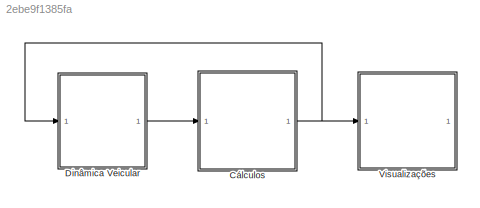
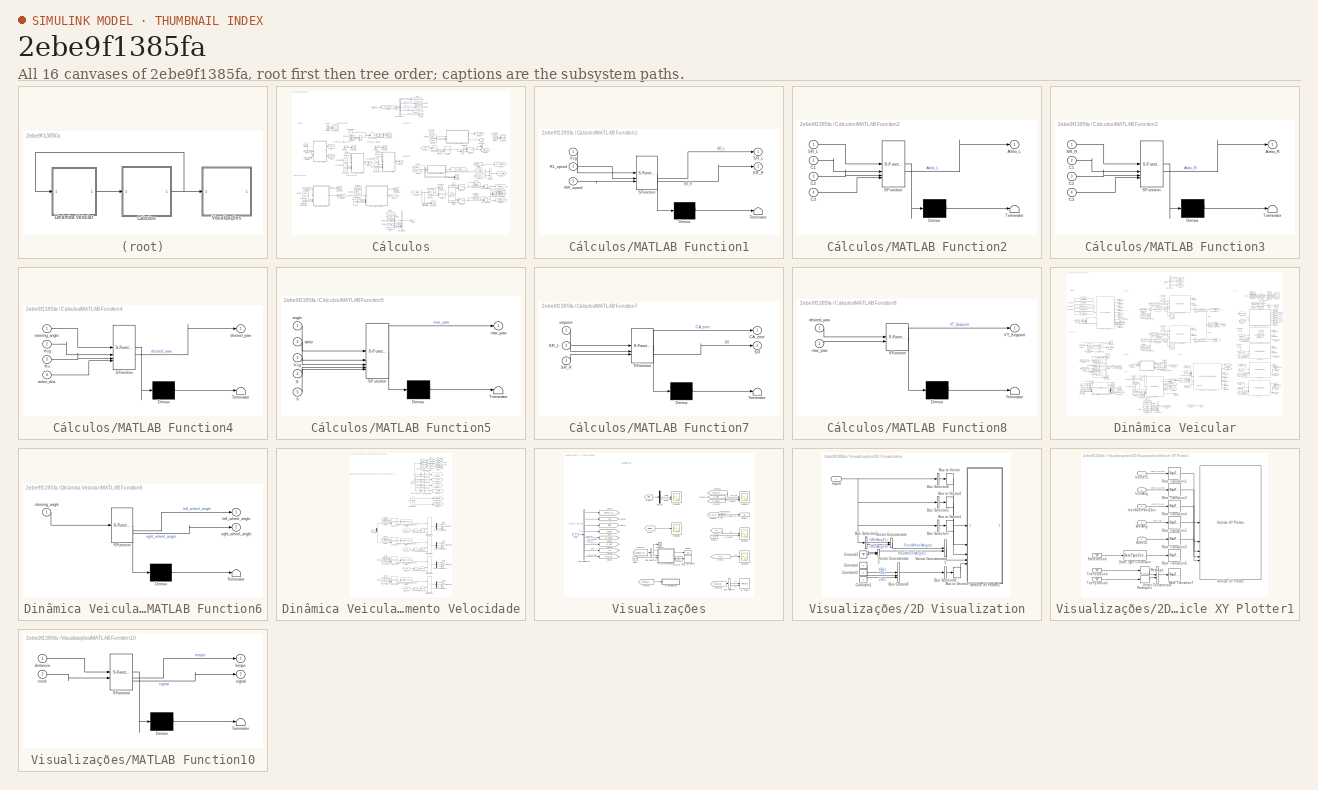
[diagram: thumbnail index - all 16 canvases of the model, root first then tree order]
MODEL slx_2ebe9f1385fa
KIND model
CONFIG AbsTol = auto
CONFIG EnableMultiTasking = off
CONFIG FixedStep = auto
CONFIG MaxStep = auto
CONFIG MinStep = auto
CONFIG RelTol = 1e-3
CONFIG SampleTimeConstraint = Unconstrained
CONFIG SolverName = VariableStepAuto
CONFIG StartTime = 0.0
CONFIG StopTime = 50
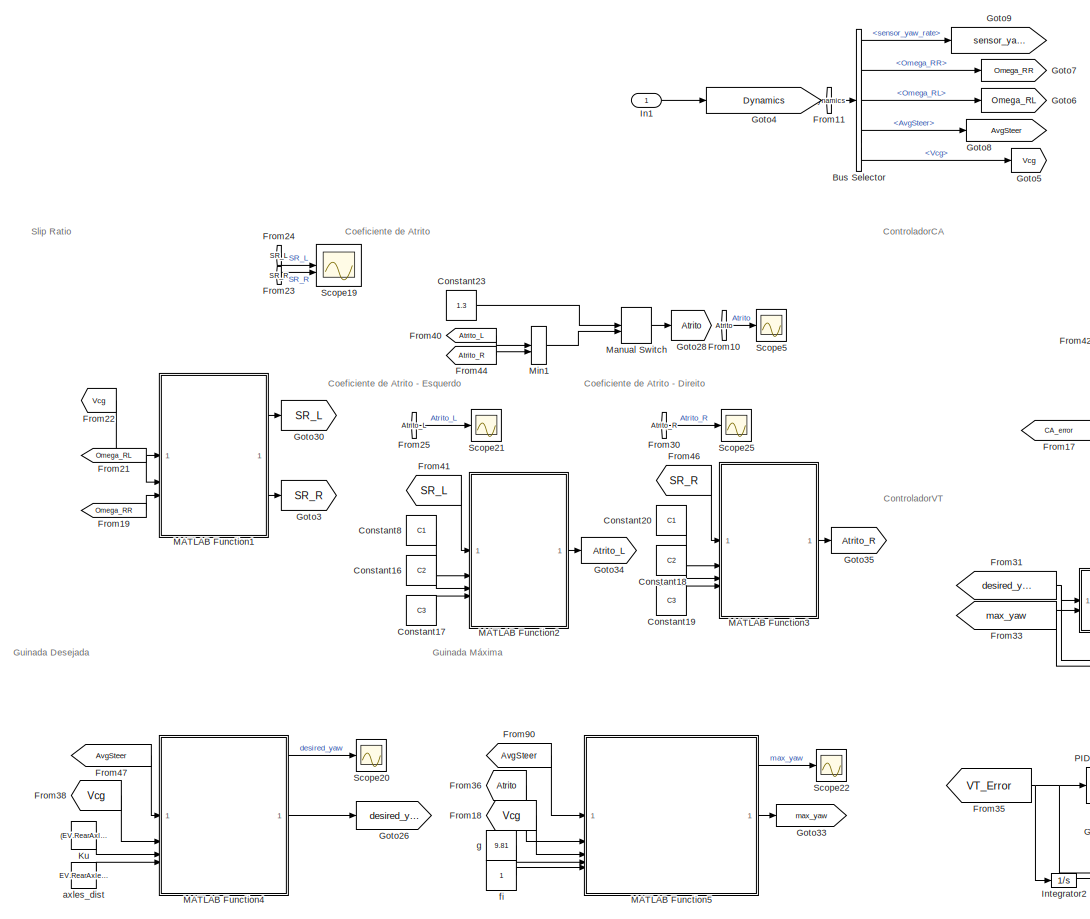
[diagram: Cálculos - part 1/2, left side, full height]
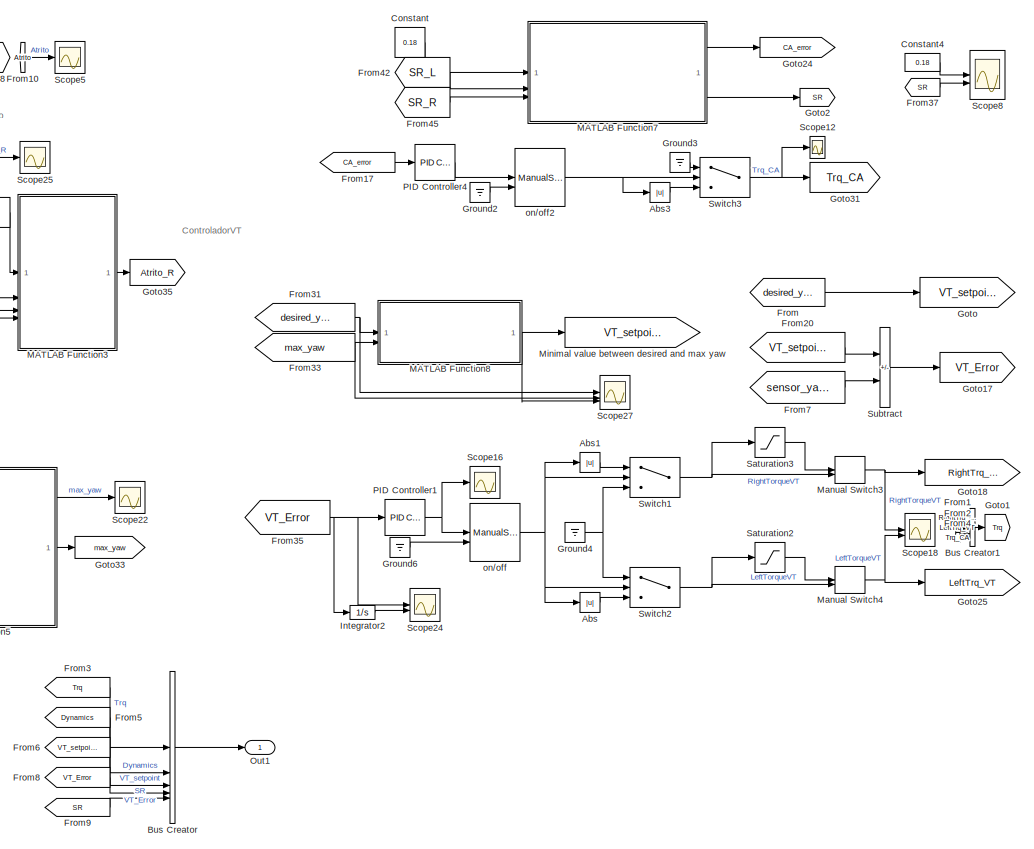
[diagram: Cálculos - part 2/2, right side, full height]
BLOCK [SubSystem] Cálculos
BLOCK [Abs] Cálculos/Abs
  SaturateOnIntegerOverflow = off
BLOCK [Abs] Cálculos/Abs1
  SaturateOnIntegerOverflow = off
BLOCK [Abs] Cálculos/Abs3
  SaturateOnIntegerOverflow = off
BLOCK [BusCreator] Cálculos/Bus Creator
  DisplayOption = bar
  InheritFromInputs = on
  Inputs = 5
BLOCK [BusCreator] Cálculos/Bus Creator1
  DisplayOption = bar
  InheritFromInputs = on
  Inputs = 3
BLOCK [BusSelector] Cálculos/Bus Selector
  OutputSignals = sensor_yaw_rate,Omega.Omega_RR,Omega.Omega_RL,AvgSteer,Vcg
BLOCK [Constant] Cálculos/Constant
  Value = 0.18
BLOCK [Constant] Cálculos/Constant16
  Commented = on
  Value = C2
BLOCK [Constant] Cálculos/Constant17
  Commented = on
  Value = C3
BLOCK [Constant] Cálculos/Constant18
  Commented = on
  Value = C2
BLOCK [Constant] Cálculos/Constant19
  Commented = on
  Value = C3
BLOCK [Constant] Cálculos/Constant20
  Commented = on
  Value = C1
BLOCK [Constant] Cálculos/Constant23
  Commented = on
  Value = 1.3
BLOCK [Constant] Cálculos/Constant4
  Value = 0.18
BLOCK [Constant] Cálculos/Constant8
  Commented = on
  Value = C1
BLOCK [From] Cálculos/From
  GotoTag = desired_yaw
BLOCK [From] Cálculos/From1
  GotoTag = RightTrq_VT
BLOCK [From] Cálculos/From10
  Commented = on
  GotoTag = Atrito
BLOCK [From] Cálculos/From11
  GotoTag = Dynamics
BLOCK [From] Cálculos/From17
  GotoTag = CA_error
BLOCK [From] Cálculos/From18
  Commented = on
  GotoTag = Vcg
BLOCK [From] Cálculos/From19
  GotoTag = Omega_RR
BLOCK [From] Cálculos/From2
  GotoTag = LeftTrq_VT
BLOCK [From] Cálculos/From20
  GotoTag = VT_setpoint
BLOCK [From] Cálculos/From21
  GotoTag = Omega_RL
BLOCK [From] Cálculos/From22
  GotoTag = Vcg
BLOCK [From] Cálculos/From23
  GotoTag = SR_R
BLOCK [From] Cálculos/From24
  GotoTag = SR_L
BLOCK [From] Cálculos/From25
  Commented = on
  GotoTag = Atrito_L
BLOCK [From] Cálculos/From3
  GotoTag = Trq
BLOCK [From] Cálculos/From30
  Commented = on
  GotoTag = Atrito_R
BLOCK [From] Cálculos/From31
  Commented = on
  GotoTag = desired_yaw
BLOCK [From] Cálculos/From33
  Commented = on
  GotoTag = max_yaw
BLOCK [From] Cálculos/From35
  GotoTag = VT_Error
BLOCK [From] Cálculos/From36
  Commented = on
  GotoTag = Atrito
BLOCK [From] Cálculos/From37
  GotoTag = SR
BLOCK [From] Cálculos/From38
  GotoTag = Vcg
BLOCK [From] Cálculos/From4
  GotoTag = Trq_CA
BLOCK [From] Cálculos/From40
  Commented = on
  GotoTag = Atrito_L
BLOCK [From] Cálculos/From41
  Commented = on
  GotoTag = SR_L
BLOCK [From] Cálculos/From42
  GotoTag = SR_L
BLOCK [From] Cálculos/From44
  Commented = on
  GotoTag = Atrito_R
BLOCK [From] Cálculos/From45
  GotoTag = SR_R
BLOCK [From] Cálculos/From46
  Commented = on
  GotoTag = SR_R
BLOCK [From] Cálculos/From47
  GotoTag = AvgSteer
BLOCK [From] Cálculos/From5
  GotoTag = Dynamics
BLOCK [From] Cálculos/From6
  GotoTag = VT_setpoint
BLOCK [From] Cálculos/From7
  GotoTag = sensor_yaw_rate
BLOCK [From] Cálculos/From8
  GotoTag = VT_Error
BLOCK [From] Cálculos/From9
  GotoTag = SR
BLOCK [From] Cálculos/From90
  Commented = on
  GotoTag = AvgSteer
BLOCK [Goto] Cálculos/Goto
  GotoTag = VT_setpoint
BLOCK [Goto] Cálculos/Goto1
  GotoTag = Trq
BLOCK [Goto] Cálculos/Goto17
  GotoTag = VT_Error
BLOCK [Goto] Cálculos/Goto18
  GotoTag = RightTrq_VT
BLOCK [Goto] Cálculos/Goto2
  GotoTag = SR
BLOCK [Goto] Cálculos/Goto24
  GotoTag = CA_error
BLOCK [Goto] Cálculos/Goto25
  GotoTag = LeftTrq_VT
BLOCK [Goto] Cálculos/Goto26
  GotoTag = desired_yaw
BLOCK [Goto] Cálculos/Goto28
  Commented = on
  GotoTag = Atrito
BLOCK [Goto] Cálculos/Goto3
  GotoTag = SR_R
BLOCK [Goto] Cálculos/Goto30
  GotoTag = SR_L
BLOCK [Goto] Cálculos/Goto31
  GotoTag = Trq_CA
BLOCK [Goto] Cálculos/Goto33
  Commented = on
  GotoTag = max_yaw
BLOCK [Goto] Cálculos/Goto34
  Commented = on
  GotoTag = Atrito_L
BLOCK [Goto] Cálculos/Goto35
  Commented = on
  GotoTag = Atrito_R
BLOCK [Goto] Cálculos/Goto4
  GotoTag = Dynamics
BLOCK [Goto] Cálculos/Goto5
  GotoTag = Vcg
BLOCK [Goto] Cálculos/Goto6
  GotoTag = Omega_RL
BLOCK [Goto] Cálculos/Goto7
  GotoTag = Omega_RR
BLOCK [Goto] Cálculos/Goto8
  GotoTag = AvgSteer
BLOCK [Goto] Cálculos/Goto9
  GotoTag = sensor_yaw_rate
BLOCK [Ground] Cálculos/Ground2
BLOCK [Ground] Cálculos/Ground3
BLOCK [Ground] Cálculos/Ground4
BLOCK [Ground] Cálculos/Ground6
BLOCK [Inport] Cálculos/In1
BLOCK [Integrator] Cálculos/Integrator2
BLOCK [Constant] Cálculos/Ku
  Value = (EV.RearAxlePositionfromCG*EV.Mass)/(EV.CornerStiffFront *EV.WheelBase)-(EV.FrontAxlePositionfromCG*EV.Mass)/(EV.CornerStiffRear*EV.WheelBase)
BLOCK [SubSystem] Cálculos/MATLAB Function1
  ErrorFcn = Stateflow.Translate.translate
  PermitHierarchicalResolution = ExplicitOnly
  SFBlockType = MATLAB Function
  TreatAsAtomicUnit = on
BLOCK [Demux] Cálculos/MATLAB Function1/ Demux 
  Outputs = 1
BLOCK [S-Function] Cálculos/MATLAB Function1/ SFunction 
  EnableBusSupport = off
  FunctionName = sf_sfun
  PortCounts = [3 3]
  SFcnIsStateOwnerBlock = off
  SFunctionDeploymentMode = off
  Tag = Stateflow S-Function 1
BLOCK [Terminator] Cálculos/MATLAB Function1/ Terminator 
BLOCK [Inport] Cálculos/MATLAB Function1/RL_speed
  Port = 2
BLOCK [Inport] Cálculos/MATLAB Function1/RR_speed
  Port = 3
BLOCK [Outport] Cálculos/MATLAB Function1/SR_L
BLOCK [Outport] Cálculos/MATLAB Function1/SR_R
  Port = 2
BLOCK [Inport] Cálculos/MATLAB Function1/Vcg
BLOCK [SubSystem] Cálculos/MATLAB Function2
  Commented = on
  ErrorFcn = Stateflow.Translate.translate
  PermitHierarchicalResolution = ExplicitOnly
  SFBlockType = MATLAB Function
  TreatAsAtomicUnit = on
BLOCK [Demux] Cálculos/MATLAB Function2/ Demux 
  Outputs = 1
BLOCK [S-Function] Cálculos/MATLAB Function2/ SFunction 
  EnableBusSupport = off
  FunctionName = sf_sfun
  PortCounts = [4 2]
  SFcnIsStateOwnerBlock = off
  SFunctionDeploymentMode = off
  Tag = Stateflow S-Function 3
BLOCK [Terminator] Cálculos/MATLAB Function2/ Terminator 
BLOCK [Outport] Cálculos/MATLAB Function2/Atrito_L
BLOCK [Inport] Cálculos/MATLAB Function2/C1
  Port = 2
BLOCK [Inport] Cálculos/MATLAB Function2/C2
  Port = 3
BLOCK [Inport] Cálculos/MATLAB Function2/C3
  Port = 4
BLOCK [Inport] Cálculos/MATLAB Function2/SR_L
BLOCK [SubSystem] Cálculos/MATLAB Function3
  Commented = on
  ErrorFcn = Stateflow.Translate.translate
  PermitHierarchicalResolution = ExplicitOnly
  SFBlockType = MATLAB Function
  TreatAsAtomicUnit = on
BLOCK [Demux] Cálculos/MATLAB Function3/ Demux 
  Outputs = 1
BLOCK [S-Function] Cálculos/MATLAB Function3/ SFunction 
  EnableBusSupport = off
  FunctionName = sf_sfun
  PortCounts = [4 2]
  SFcnIsStateOwnerBlock = off
  SFunctionDeploymentMode = off
  Tag = Stateflow S-Function 4
BLOCK [Terminator] Cálculos/MATLAB Function3/ Terminator 
BLOCK [Outport] Cálculos/MATLAB Function3/Atrito_R
BLOCK [Inport] Cálculos/MATLAB Function3/C1
  Port = 2
BLOCK [Inport] Cálculos/MATLAB Function3/C2
  Port = 3
BLOCK [Inport] Cálculos/MATLAB Function3/C3
  Port = 4
BLOCK [Inport] Cálculos/MATLAB Function3/SR_R
BLOCK [SubSystem] Cálculos/MATLAB Function4
  ErrorFcn = Stateflow.Translate.translate
  PermitHierarchicalResolution = ExplicitOnly
  SFBlockType = MATLAB Function
  TreatAsAtomicUnit = on
BLOCK [Demux] Cálculos/MATLAB Function4/ Demux 
  Outputs = 1
BLOCK [S-Function] Cálculos/MATLAB Function4/ SFunction 
  EnableBusSupport = off
  FunctionName = sf_sfun
  PortCounts = [4 2]
  SFcnIsStateOwnerBlock = off
  SFunctionDeploymentMode = off
  Tag = Stateflow S-Function 2
BLOCK [Terminator] Cálculos/MATLAB Function4/ Terminator 
BLOCK [Inport] Cálculos/MATLAB Function4/Ku
  Port = 3
BLOCK [Inport] Cálculos/MATLAB Function4/Vcg
  Port = 2
BLOCK [Inport] Cálculos/MATLAB Function4/axles_dist
  Port = 4
BLOCK [Outport] Cálculos/MATLAB Function4/desired_yaw
BLOCK [Inport] Cálculos/MATLAB Function4/steering_angle
BLOCK [SubSystem] Cálculos/MATLAB Function5
  Commented = on
  ErrorFcn = Stateflow.Translate.translate
  PermitHierarchicalResolution = ExplicitOnly
  SFBlockType = MATLAB Function
  TreatAsAtomicUnit = on
BLOCK [Demux] Cálculos/MATLAB Function5/ Demux 
  Outputs = 1
BLOCK [S-Function] Cálculos/MATLAB Function5/ SFunction 
  EnableBusSupport = off
  FunctionName = sf_sfun
  PortCounts = [5 2]
  SFcnIsStateOwnerBlock = off
  SFunctionDeploymentMode = off
  Tag = Stateflow S-Function 6
BLOCK [Terminator] Cálculos/MATLAB Function5/ Terminator 
BLOCK [Inport] Cálculos/MATLAB Function5/Vcg
  Port = 3
BLOCK [Inport] Cálculos/MATLAB Function5/angle
BLOCK [Inport] Cálculos/MATLAB Function5/atrito
  Port = 2
BLOCK [Inport] Cálculos/MATLAB Function5/fi
  Port = 5
BLOCK [Inport] Cálculos/MATLAB Function5/g
  Port = 4
BLOCK [Outport] Cálculos/MATLAB Function5/max_yaw
BLOCK [SubSystem] Cálculos/MATLAB Function7
  ErrorFcn = Stateflow.Translate.translate
  PermitHierarchicalResolution = ExplicitOnly
  SFBlockType = MATLAB Function
  TreatAsAtomicUnit = on
BLOCK [Demux] Cálculos/MATLAB Function7/ Demux 
  Outputs = 1
BLOCK [S-Function] Cálculos/MATLAB Function7/ SFunction 
  EnableBusSupport = off
  FunctionName = sf_sfun
  PortCounts = [3 3]
  SFcnIsStateOwnerBlock = off
  SFunctionDeploymentMode = off
  Tag = Stateflow S-Function 8
BLOCK [Terminator] Cálculos/MATLAB Function7/ Terminator 
BLOCK [Outport] Cálculos/MATLAB Function7/CA_error
BLOCK [Outport] Cálculos/MATLAB Function7/SR
  Port = 2
BLOCK [Inport] Cálculos/MATLAB Function7/SR_L
  Port = 2
BLOCK [Inport] Cálculos/MATLAB Function7/SR_R
  Port = 3
BLOCK [Inport] Cálculos/MATLAB Function7/setpoint
BLOCK [SubSystem] Cálculos/MATLAB Function8
  Commented = on
  ErrorFcn = Stateflow.Translate.translate
  PermitHierarchicalResolution = ExplicitOnly
  SFBlockType = MATLAB Function
  TreatAsAtomicUnit = on
BLOCK [Demux] Cálculos/MATLAB Function8/ Demux 
  Outputs = 1
BLOCK [S-Function] Cálculos/MATLAB Function8/ SFunction 
  EnableBusSupport = off
  FunctionName = sf_sfun
  PortCounts = [2 2]
  SFcnIsStateOwnerBlock = off
  SFunctionDeploymentMode = off
  Tag = Stateflow S-Function 9
BLOCK [Terminator] Cálculos/MATLAB Function8/ Terminator 
BLOCK [Outport] Cálculos/MATLAB Function8/VT_Setpoint
BLOCK [Inport] Cálculos/MATLAB Function8/desired_yaw
BLOCK [Inport] Cálculos/MATLAB Function8/max_yaw
  Port = 2
BLOCK [ManualSwitch] Cálculos/Manual Switch
  Commented = on
  CurrentSetting = 0
BLOCK [ManualSwitch] Cálculos/Manual Switch3
BLOCK [ManualSwitch] Cálculos/Manual Switch4
BLOCK [MinMax] Cálculos/Min1
  Commented = on
  Inputs = 2
BLOCK [Goto] Cálculos/Minimal value between desired and max yaw
  Commented = on
  GotoTag = VT_setpoint
BLOCK [Outport] Cálculos/Out1
BLOCK [Reference] Cálculos/PID Controller1  REF=slpidlib/PID Controller
  SourceBlock = slpidlib/PID Controller
  SourceType = PID 1dof
BLOCK [Reference] Cálculos/PID Controller4  REF=slpidlib/PID Controller
  SourceBlock = slpidlib/PID Controller
  SourceType = PID 1dof
BLOCK [Saturate] Cálculos/Saturation2
  LowerLimit = 0
  UpperLimit = MTR.MaxTorque*0.9
BLOCK [Saturate] Cálculos/Saturation3
  LowerLimit = 0
  UpperLimit = MTR.MaxTorque*0.9
BLOCK [Scope] Cálculos/Scope12
  ActiveDisplayYMaximum = 245.1286599254413
  ActiveDisplayYMinimum = -27.236517769493471
  DataLoggingVariableName = ScopeData12
  Floating = off
  GraphicalSettings = {"Style":{"BackgroundColor":[0.12941176470588237,0.12941176470588237,0.12941176470588237],"AxesColor":[0.07058823529411765,0.07058823529411765,0.07058823529411765],"LabelsColor":[0.8509803921568627,0.8509803921568627,0.8509803921568627],"PreserveColors":false,"Visible":[true],"LineStyle":["-"],"LineWidth":[1.5],"BarWidth":[0.9],"LineColor":["auto"],"LineFaceAlpha":[1],"LineEdgeAlpha":[1],"Marker":...<+1896ch>
  MultipleDisplayCache = [{"MaxYLimMag":245.1286599254413,"MaxYLimReal":245.1286599254413,"MinYLimMag":0,"MinYLimReal":-27.236517769493471,"PlotAsMagnitudePhase":false,"ShowGrid":true,"ShowLegend":false,"Title":"%<SignalLabel>","YLabel":""}]
  NumInputPorts = 1
  ScopeFrameLocation = window
  WasSavedAsWebScope = on
  WindowPosition = [462.000000,348.000000,560.000000,420.000000,]
BLOCK [Scope] Cálculos/Scope16
  ActiveDisplayYMaximum = 3.4014672990438211
  ActiveDisplayYMinimum = -3.8327939073436768
  DataLoggingVariableName = ScopeData16
  Floating = off
  GraphicalSettings = {"Style":{"BackgroundColor":[0.12941176470588237,0.12941176470588237,0.12941176470588237],"AxesColor":[0.07058823529411765,0.07058823529411765,0.07058823529411765],"LabelsColor":[0.8509803921568627,0.8509803921568627,0.8509803921568627],"PreserveColors":false,"Visible":[true],"LineStyle":["-"],"LineWidth":[1.5],"BarWidth":[0.9],"LineColor":["auto"],"LineFaceAlpha":[1],"LineEdgeAlpha":[1],"Marker":...<+2015ch>
  MultipleDisplayCache = [{"MaxYLimMag":3.8327939073436768,"MaxYLimReal":3.4014672990438211,"MinYLimMag":0,"MinYLimReal":-3.8327939073436768,"PlotAsMagnitudePhase":false,"ShowGrid":true,"ShowLegend":false,"Title":"%<SignalLabel>","YLabel":""}]
  NumInputPorts = 1
  ScopeFrameLocation = window
  WasSavedAsWebScope = on
  WindowPosition = [200.000000,509.000000,560.000000,420.000000,]
BLOCK [Scope] Cálculos/Scope18
  ActiveDisplayYMaximum = 46.423125
  ActiveDisplayYMinimum = -5.1581249999999992
  DataLoggingVariableName = ScopeData33
  Floating = off
  GraphicalSettings = {"AxesScalingProperties":{"AlignXAxis":"Center","AlignYAxis":"Center","AutoScaleXAxisLimits":false,"AxesScaling":"Manual","AxesScalingNumUpdates":10,"ExpandOnly":true,"ScaleAxesLimitsAtStop":false,"XAxisDataRange":100,"YAxisDataRange":80},"DisplayProperties":{"ColorOrder":["auto","auto","auto","auto","auto","auto","auto","auto","auto","auto","auto","auto","auto","auto","auto","auto","auto","auto",...<+2047ch>
  MultipleDisplayCache = [{"MaxYLimMag":46.423125,"MaxYLimReal":46.423125,"MinYLimMag":0,"MinYLimReal":-5.1581249999999992,"PlotAsMagnitudePhase":false,"ShowGrid":true,"ShowLegend":false,"Title":"%<SignalLabel>","YLabel":""}]
  NumInputPorts = 2
  ScopeFrameLocation = window
  WasSavedAsWebScope = on
  WindowPosition = [680.000000,330.000000,560.000000,420.000000,]
BLOCK [Scope] Cálculos/Scope19
  ActiveDisplayYMaximum = 42.831445983828111
  ActiveDisplayYMinimum = -4.8412646188109285
  DataLoggingVariableName = ScopeData3
  Floating = off
  GraphicalSettings = {"Style":{"BackgroundColor":[0.12941176470588237,0.12941176470588237,0.12941176470588237],"AxesColor":[0.07058823529411765,0.07058823529411765,0.07058823529411765],"LabelsColor":[0.8509803921568627,0.8509803921568627,0.8509803921568627],"PreserveColors":false,"Visible":[true,true],"LineStyle":["-","-"],"LineWidth":[1.5,1.5],"BarWidth":[0.9,0.9],"LineColor":["auto","auto"],"LineFaceAlpha":[1,1],"Li...<+2096ch>
  MultipleDisplayCache = [{"MaxYLimMag":42.831445983828111,"MaxYLimReal":42.831445983828111,"MinYLimMag":0,"MinYLimReal":-4.8412646188109285,"PlotAsMagnitudePhase":false,"ShowGrid":true,"ShowLegend":true,"Title":"%<SignalLabel>","YLabel":""}]
  NumInputPorts = 2
  ScopeFrameLocation = window
  ShowLegend = on
  WasSavedAsWebScope = on
  WindowPosition = [0.000000,36.000000,1920.000000,1009.000000,]
BLOCK [Scope] Cálculos/Scope20
  ActiveDisplayYMaximum = 2.4942874584018693
  ActiveDisplayYMinimum = -2.5420947533645726
  DataLoggingVariableName = ScopeData20
  Floating = off
  GraphicalSettings = {"Style":{"BackgroundColor":[0.12941176470588237,0.12941176470588237,0.12941176470588237],"AxesColor":[0.07058823529411765,0.07058823529411765,0.07058823529411765],"LabelsColor":[0.8509803921568627,0.8509803921568627,0.8509803921568627],"PreserveColors":false,"Visible":[true],"LineStyle":["-"],"LineWidth":[1.5],"BarWidth":[0.9],"LineColor":["auto"],"LineFaceAlpha":[1],"LineEdgeAlpha":[1],"Marker":...<+2023ch>
  MultipleDisplayCache = [{"MaxYLimMag":2.5420947533645726,"MaxYLimReal":2.4942874584018693,"MinYLimMag":0,"MinYLimReal":-2.5420947533645726,"PlotAsMagnitudePhase":false,"ShowGrid":true,"ShowLegend":true,"Title":"%<SignalLabel>","YLabel":""}]
  NumInputPorts = 1
  ScopeFrameLocation = window
  ShowLegend = on
  WasSavedAsWebScope = on
  WindowPosition = [99.000000,80.000000,537.000000,406.000000,]
BLOCK [Scope] Cálculos/Scope21
  ActiveDisplayYMaximum = 0.040176927899511529
  ActiveDisplayYMinimum = -0.014311665189074181
  Commented = on
  DataLoggingVariableName = ScopeData4
  Floating = off
  GraphicalSettings = {"Style":{"BackgroundColor":[0.12941176470588237,0.12941176470588237,0.12941176470588237],"AxesColor":[0.07058823529411765,0.07058823529411765,0.07058823529411765],"LabelsColor":[0.8509803921568627,0.8509803921568627,0.8509803921568627],"PreserveColors":false,"Visible":[true],"LineStyle":["-"],"LineWidth":[1.5],"BarWidth":[0.9],"LineColor":["auto"],"LineFaceAlpha":[1],"LineEdgeAlpha":[1],"Marker":...<+2005ch>
  MultipleDisplayCache = [{"MaxYLimMag":0.040176927899511529,"MaxYLimReal":0.040176927899511529,"MinYLimMag":0,"MinYLimReal":-0.014311665189074181,"PlotAsMagnitudePhase":false,"ShowGrid":true,"ShowLegend":true,"Title":"%<SignalLabel>","YLabel":""}]
  NumInputPorts = 1
  ScopeFrameLocation = window
  ShowLegend = on
  WasSavedAsWebScope = on
  WindowPosition = [490.000000,304.000000,560.000000,420.000000,]
BLOCK [Scope] Cálculos/Scope22
  ActiveDisplayYMaximum = 350.11786952257728
  ActiveDisplayYMinimum = -2003.2780919581139
  Commented = on
  DataLoggingVariableName = ScopeData22
  Floating = off
  GraphicalSettings = {"Style":{"BackgroundColor":[0.12941176470588237,0.12941176470588237,0.12941176470588237],"AxesColor":[0.07058823529411765,0.07058823529411765,0.07058823529411765],"LabelsColor":[0.8509803921568627,0.8509803921568627,0.8509803921568627],"PreserveColors":false,"Visible":[true],"LineStyle":["-"],"LineWidth":[1.5],"BarWidth":[0.9],"LineColor":["auto"],"LineFaceAlpha":[1],"LineEdgeAlpha":[1],"Marker":...<+1995ch>
  MultipleDisplayCache = [{"MaxYLimMag":2003.2780919581139,"MaxYLimReal":350.11786952257728,"MinYLimMag":0,"MinYLimReal":-2003.2780919581139,"PlotAsMagnitudePhase":false,"ShowGrid":true,"ShowLegend":true,"Title":"%<SignalLabel>","YLabel":""}]
  NumInputPorts = 1
  ScopeFrameLocation = window
  ShowLegend = on
  WasSavedAsWebScope = on
  WindowPosition = [877.000000,206.000000,560.000000,572.000000,]
BLOCK [Scope] Cálculos/Scope24
  ActiveDisplayYMaximum = 2.1447396372135543
  ActiveDisplayYMinimum = -19.302656734921992
  DataLoggingVariableName = ScopeData24
  Floating = off
  GraphicalSettings = {"AxesScalingProperties":{"AlignXAxis":"Center","AlignYAxis":"Center","AutoScaleXAxisLimits":false,"AxesScaling":"Manual","AxesScalingNumUpdates":10,"ExpandOnly":true,"ScaleAxesLimitsAtStop":false,"XAxisDataRange":100,"YAxisDataRange":80},"DisplayProperties":{"ColorOrder":["auto","auto","auto","auto","auto","auto","auto","auto","auto","auto","auto","auto","auto","auto","auto","auto","auto","auto",...<+2131ch>
  MultipleDisplayCache = [{"MaxYLimMag":19.302656734921992,"MaxYLimReal":2.1447396372135543,"MinYLimMag":0,"MinYLimReal":-19.302656734921992,"PlotAsMagnitudePhase":false,"ShowGrid":true,"ShowLegend":true,"Title":"%<SignalLabel>","YLabel":""}]
  NumInputPorts = 2
  ScopeFrameLocation = window
  ShowLegend = on
  WasSavedAsWebScope = on
  WindowPosition = [563.000000,217.000000,560.000000,420.000000,]
BLOCK [Scope] Cálculos/Scope25
  ActiveDisplayYMaximum = 0.01107042029911246
  ActiveDisplayYMinimum = -0.0067977955587474378
  Commented = on
  DataLoggingVariableName = ScopeData5
  Floating = off
  GraphicalSettings = {"Style":{"BackgroundColor":[0.12941176470588237,0.12941176470588237,0.12941176470588237],"AxesColor":[0.07058823529411765,0.07058823529411765,0.07058823529411765],"LabelsColor":[0.8509803921568627,0.8509803921568627,0.8509803921568627],"PreserveColors":false,"Visible":[true],"LineStyle":["-"],"LineWidth":[1.5],"BarWidth":[0.9],"LineColor":["auto"],"LineFaceAlpha":[1],"LineEdgeAlpha":[1],"Marker":...<+2003ch>
  MultipleDisplayCache = [{"MaxYLimMag":0.01107042029911246,"MaxYLimReal":0.01107042029911246,"MinYLimMag":0,"MinYLimReal":-0.0067977955587474378,"PlotAsMagnitudePhase":false,"ShowGrid":true,"ShowLegend":true,"Title":"%<SignalLabel>","YLabel":""}]
  NumInputPorts = 1
  ScopeFrameLocation = window
  ShowLegend = on
  WasSavedAsWebScope = on
  WindowPosition = [1062.000000,288.000000,556.000000,420.000000,]
BLOCK [Scope] Cálculos/Scope27
  ActiveDisplayYMaximum = 350.11786952257728
  ActiveDisplayYMinimum = -2003.2780919581139
  Commented = on
  DataLoggingVariableName = ScopeData27
  Floating = off
  GraphicalSettings = {"AxesScalingProperties":{"AlignXAxis":"Center","AlignYAxis":"Center","AutoScaleXAxisLimits":false,"AxesScaling":"Manual","AxesScalingNumUpdates":10,"ExpandOnly":true,"ScaleAxesLimitsAtStop":false,"XAxisDataRange":100,"YAxisDataRange":80},"DisplayProperties":{"ColorOrder":["auto","auto","auto","auto","auto","auto","auto","auto","auto","auto","auto","auto","auto","auto","auto","auto","auto","auto",...<+2270ch>
  MultipleDisplayCache = [{"MaxYLimMag":2003.2780919581139,"MaxYLimReal":350.11786952257728,"MinYLimMag":0,"MinYLimReal":-2003.2780919581139,"PlotAsMagnitudePhase":false,"ShowGrid":true,"ShowLegend":true,"Title":"%<SignalLabel>","YLabel":""}]
  NumInputPorts = 3
  ScopeFrameLocation = window
  ShowLegend = on
  WasSavedAsWebScope = on
  WindowPosition = [558.000000,330.000000,560.000000,420.000000,]
BLOCK [Scope] Cálculos/Scope5
  ActiveDisplayYMaximum = 3.4614672364545287
  ActiveDisplayYMinimum = -19.471110993414115
  Commented = on
  Floating = off
  GraphicalSettings = {"AxesScalingProperties":{"AlignXAxis":"Center","AlignYAxis":"Center","AutoScaleXAxisLimits":false,"AxesScaling":"Manual","AxesScalingNumUpdates":10,"ExpandOnly":true,"ScaleAxesLimitsAtStop":false,"XAxisDataRange":100,"YAxisDataRange":80},"DisplayProperties":{"ColorOrder":["auto","auto","auto","auto","auto","auto","auto","auto","auto","auto","auto","auto","auto","auto","auto","auto","auto","auto",...<+2008ch>
  MultipleDisplayCache = [{"MaxYLimMag":19.471110993414115,"MaxYLimReal":3.4614672364545287,"MinYLimMag":0,"MinYLimReal":-19.471110993414115,"PlotAsMagnitudePhase":false,"ShowGrid":true,"ShowLegend":true,"Title":"%<SignalLabel>","YLabel":""}]
  NumInputPorts = 1
  ScopeFrameLocation = window
  ShowLegend = on
  WasSavedAsWebScope = on
  WindowPosition = [680.000000,330.000000,560.000000,420.000000,]
BLOCK [Scope] Cálculos/Scope8
  DataLoggingVariableName = ScopeData31
  Floating = off
  GraphicalSettings = {"GraphicalSettings":{"LegacySettings":true,"Style":{"Style":{"PlotType":"Auto"}}}}
  NumInputPorts = 2
  ScopeFrameLocation = window
  WasSavedAsWebScope = on
  WindowPosition = [680.000000,330.000000,560.000000,420.000000,]
BLOCK [Sum] Cálculos/Subtract
  IconShape = rectangular
  Inputs = +-
BLOCK [Switch] Cálculos/Switch1
  Criteria = u2 > Threshold
  InputSameDT = off
  SaturateOnIntegerOverflow = off
BLOCK [Switch] Cálculos/Switch2
  InputSameDT = off
  SaturateOnIntegerOverflow = off
BLOCK [Switch] Cálculos/Switch3
  InputSameDT = off
  SaturateOnIntegerOverflow = off
BLOCK [Constant] Cálculos/axles_dist
  Value = EV.RearAxlePositionfromCG + EV.FrontAxlePositionfromCG
BLOCK [Constant] Cálculos/fi
  Commented = on
  NameLocation = left
BLOCK [Constant] Cálculos/g
  Commented = on
  NameLocation = left
  Value = 9.81
BLOCK [ManualSwitch] Cálculos/on//off
BLOCK [ManualSwitch] Cálculos/on//off2
  CurrentSetting = 0
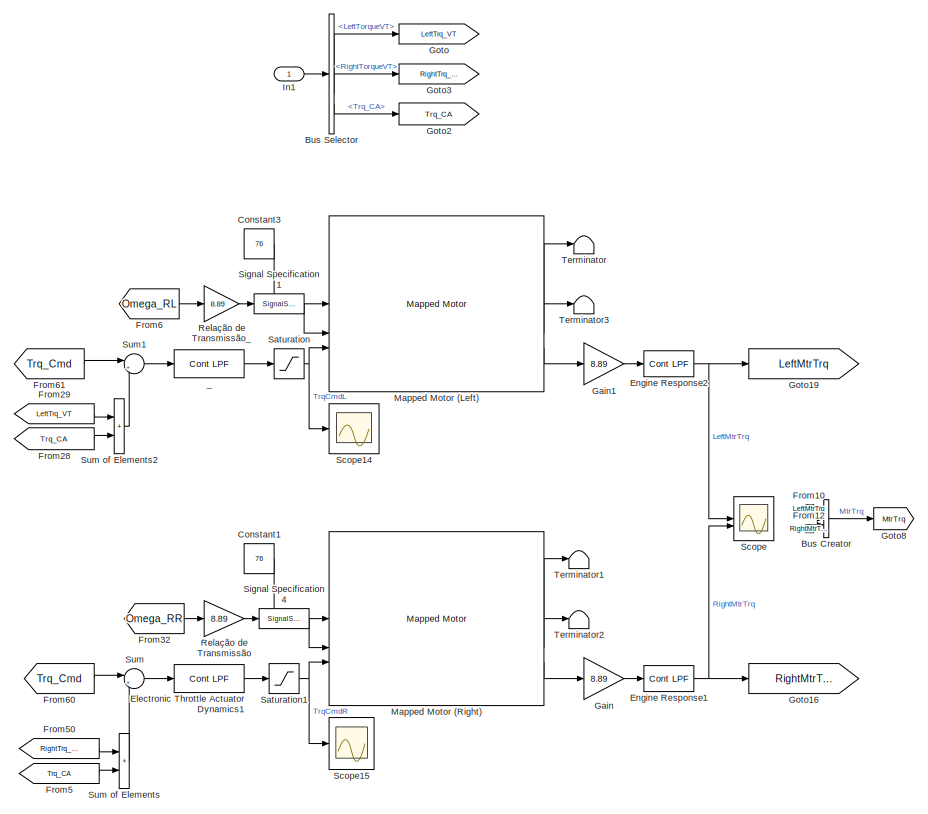
[diagram: Dinâmica Veicular - part 1/5, top center region]
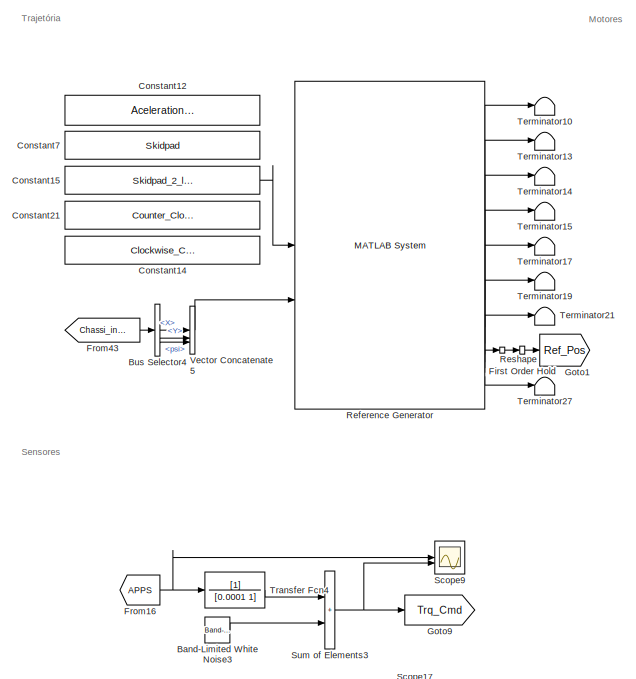
[diagram: Dinâmica Veicular - part 2/5, middle left region]
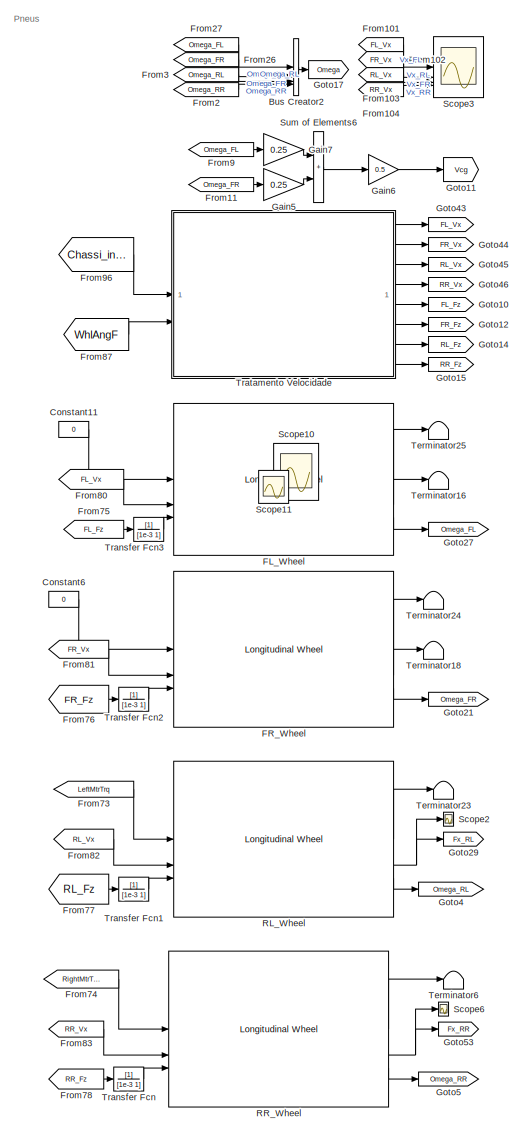
[diagram: Dinâmica Veicular - part 3/5, right side, full height]
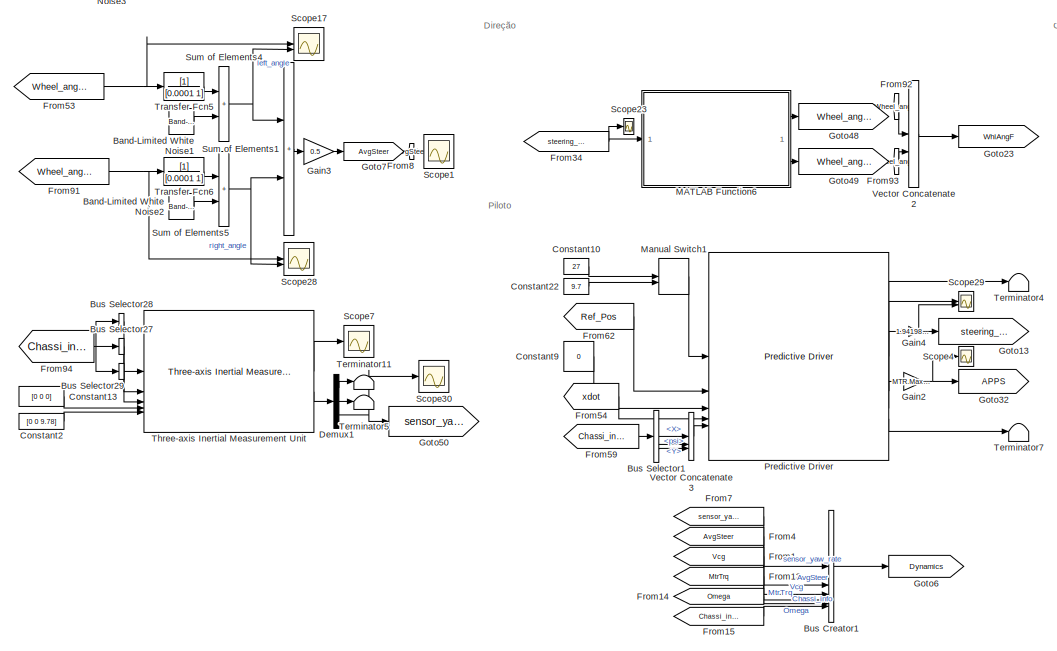
[diagram: Dinâmica Veicular - part 4/5, bottom left region]
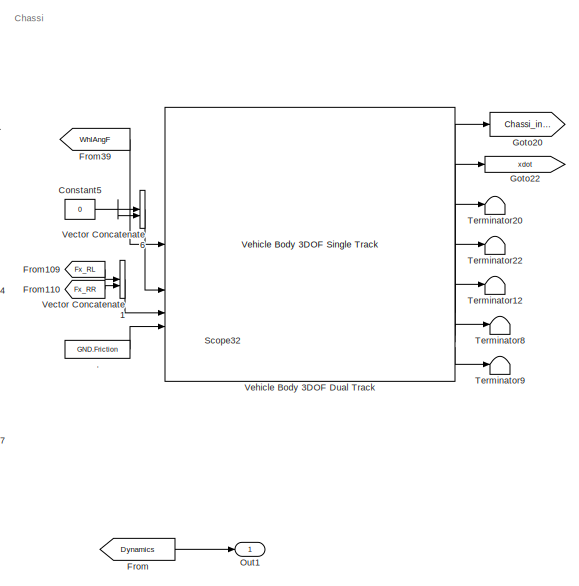
[diagram: Dinâmica Veicular - part 5/5, bottom center region]
BLOCK [SubSystem] Dinâmica Veicular
BLOCK [Constant] Dinâmica Veicular/.
  Value = GND.Friction
BLOCK [Reference] Dinâmica Veicular/Band-Limited White Noise1  REF=simulink/Sources/Band-Limited
White Noise
  SourceBlock = simulink/Sources/Band-Limited\nWhite Noise
  SourceType = Band-Limited White Noise.
BLOCK [Reference] Dinâmica Veicular/Band-Limited White Noise2  REF=simulink/Sources/Band-Limited
White Noise
  SourceBlock = simulink/Sources/Band-Limited\nWhite Noise
  SourceType = Band-Limited White Noise.
BLOCK [Reference] Dinâmica Veicular/Band-Limited White Noise3  REF=simulink/Sources/Band-Limited
White Noise
  SourceBlock = simulink/Sources/Band-Limited\nWhite Noise
  SourceType = Band-Limited White Noise.
BLOCK [BusCreator] Dinâmica Veicular/Bus Creator
  DisplayOption = bar
  InheritFromInputs = on
  Inputs = 2
BLOCK [BusCreator] Dinâmica Veicular/Bus Creator1
  DisplayOption = bar
  InheritFromInputs = on
  Inputs = 6
BLOCK [BusCreator] Dinâmica Veicular/Bus Creator2
  DisplayOption = bar
  InheritFromInputs = on
  Inputs = 4
BLOCK [BusSelector] Dinâmica Veicular/Bus Selector
  OutputSignals = Trq.LeftTorqueVT,Trq.RightTorqueVT,Trq.Trq_CA
BLOCK [BusSelector] Dinâmica Veicular/Bus Selector1
  OutputSignals = InertFrm.Cg.Disp.X,InertFrm.Cg.Disp.Y,InertFrm.Cg.Ang.psi
BLOCK [BusSelector] Dinâmica Veicular/Bus Selector27
  OutputAsBus = on
  OutputSignals = BdyFrm.Cg.AngVel
BLOCK [BusSelector] Dinâmica Veicular/Bus Selector28
  OutputAsBus = on
  OutputSignals = BdyFrm.Cg.Acc.ax,BdyFrm.Cg.Acc.ay,BdyFrm.Cg.Acc.az
BLOCK [BusSelector] Dinâmica Veicular/Bus Selector29
  OutputAsBus = on
  OutputSignals = BdyFrm.Cg.Acc.xddot,BdyFrm.Cg.Acc.yddot,BdyFrm.Cg.Acc.zddot
BLOCK [BusSelector] Dinâmica Veicular/Bus Selector4
  OutputSignals = InertFrm.Cg.Disp.X,InertFrm.Cg.Disp.Y,InertFrm.Cg.Ang.psi
BLOCK [Constant] Dinâmica Veicular/Constant1
  Value = 76
BLOCK [Constant] Dinâmica Veicular/Constant10
  Value = 27
BLOCK [Constant] Dinâmica Veicular/Constant11
  Value = 0
BLOCK [Constant] Dinâmica Veicular/Constant12
  Value = AcelerationTrack
BLOCK [Constant] Dinâmica Veicular/Constant13
  Value = [0 0 0]
BLOCK [Constant] Dinâmica Veicular/Constant14
  Value = Clockwise_Circle_5Laps
BLOCK [Constant] Dinâmica Veicular/Constant15
  Value = Skidpad_2_laps
BLOCK [Constant] Dinâmica Veicular/Constant2
  Value = [0 0 9.78]
BLOCK [Constant] Dinâmica Veicular/Constant21
  Value = Counter_Clockwise_Circle_5Laps
BLOCK [Constant] Dinâmica Veicular/Constant22
  Value = 9.7
BLOCK [Constant] Dinâmica Veicular/Constant3
  Value = 76
BLOCK [Constant] Dinâmica Veicular/Constant5
  Value = 0
BLOCK [Constant] Dinâmica Veicular/Constant6
  Value = 0
BLOCK [Constant] Dinâmica Veicular/Constant7
  Value = Skidpad
BLOCK [Constant] Dinâmica Veicular/Constant9
  Value = 0
BLOCK [Demux] Dinâmica Veicular/Demux1
  Outputs = 3
BLOCK [Reference] Dinâmica Veicular/Electronic Throttle Actuator Dynamics1  REF=autolibutils/Cont LPF
  SourceBlock = autolibutils/Cont LPF
BLOCK [Reference] Dinâmica Veicular/Engine Response1  REF=autolibutils/Cont LPF
  SourceBlock = autolibutils/Cont LPF
BLOCK [Reference] Dinâmica Veicular/Engine Response2  REF=autolibutils/Cont LPF
  NameLocation = top
  SourceBlock = autolibutils/Cont LPF
BLOCK [Reference] Dinâmica Veicular/FL_Wheel  REF=autolibshared/Longitudinal Wheel
  LibrarySourceBlock = vehdynlibtire/Longitudinal Wheel - Disc Brake
  SourceBlock = autolibshared/Longitudinal Wheel
  SourceType = Longitudinal Wheel
BLOCK [Reference] Dinâmica Veicular/FR_Wheel  REF=autolibshared/Longitudinal Wheel
  LibrarySourceBlock = vehdynlibtire/Longitudinal Wheel - Disc Brake
  SourceBlock = autolibshared/Longitudinal Wheel
  SourceType = Longitudinal Wheel
BLOCK [FirstOrderHold] Dinâmica Veicular/First Order Hold
  AllowContinuousInput = on
  ErrorTolerance = .1
  InitialOutput = [EV.InitialLongPosition EV.InitialLatPosition EV.InitialYawAngle]
BLOCK [From] Dinâmica Veicular/From
  GotoTag = Dynamics
BLOCK [From] Dinâmica Veicular/From1
  GotoTag = Vcg
BLOCK [From] Dinâmica Veicular/From10
  GotoTag = LeftMtrTrq
BLOCK [From] Dinâmica Veicular/From101
  GotoTag = FL_Vx
BLOCK [From] Dinâmica Veicular/From102
  GotoTag = FR_Vx
BLOCK [From] Dinâmica Veicular/From103
  GotoTag = RL_Vx
BLOCK [From] Dinâmica Veicular/From104
  GotoTag = RR_Vx
BLOCK [From] Dinâmica Veicular/From109
  GotoTag = Fx_RL
BLOCK [From] Dinâmica Veicular/From11
  GotoTag = Omega_FR
BLOCK [From] Dinâmica Veicular/From110
  GotoTag = Fx_RR
BLOCK [From] Dinâmica Veicular/From12
  GotoTag = RightMtrTrq
BLOCK [From] Dinâmica Veicular/From13
  GotoTag = MtrTrq
BLOCK [From] Dinâmica Veicular/From14
  GotoTag = Omega
BLOCK [From] Dinâmica Veicular/From15
  GotoTag = Chassi_info
BLOCK [From] Dinâmica Veicular/From16
  GotoTag = APPS
BLOCK [From] Dinâmica Veicular/From2
  GotoTag = Omega_RR
BLOCK [From] Dinâmica Veicular/From26
  GotoTag = Omega_FR
BLOCK [From] Dinâmica Veicular/From27
  GotoTag = Omega_FL
BLOCK [From] Dinâmica Veicular/From28
  GotoTag = Trq_CA
BLOCK [From] Dinâmica Veicular/From29
  GotoTag = LeftTrq_VT
BLOCK [From] Dinâmica Veicular/From3
  GotoTag = Omega_RL
BLOCK [From] Dinâmica Veicular/From32
  GotoTag = Omega_RR
BLOCK [From] Dinâmica Veicular/From34
  GotoTag = steering_angle
BLOCK [From] Dinâmica Veicular/From39
  GotoTag = WhlAngF
BLOCK [From] Dinâmica Veicular/From4
  GotoTag = AvgSteer
  NameLocation = right
BLOCK [From] Dinâmica Veicular/From43
  GotoTag = Chassi_info
BLOCK [From] Dinâmica Veicular/From5
  GotoTag = Trq_CA
BLOCK [From] Dinâmica Veicular/From50
  GotoTag = RightTrq_VT
BLOCK [From] Dinâmica Veicular/From53
  GotoTag = Wheel_angle_L
BLOCK [From] Dinâmica Veicular/From54
  GotoTag = xdot
BLOCK [From] Dinâmica Veicular/From59
  GotoTag = Chassi_info
BLOCK [From] Dinâmica Veicular/From6
  GotoTag = Omega_RL
BLOCK [From] Dinâmica Veicular/From60
  GotoTag = Trq_Cmd
BLOCK [From] Dinâmica Veicular/From61
  GotoTag = Trq_Cmd
BLOCK [From] Dinâmica Veicular/From62
  GotoTag = Ref_Pos
BLOCK [From] Dinâmica Veicular/From7
  GotoTag = sensor_yaw_rate
BLOCK [From] Dinâmica Veicular/From73
  GotoTag = LeftMtrTrq
BLOCK [From] Dinâmica Veicular/From74
  GotoTag = RightMtrTrq
BLOCK [From] Dinâmica Veicular/From75
  GotoTag = FL_Fz
BLOCK [From] Dinâmica Veicular/From76
  GotoTag = FR_Fz
BLOCK [From] Dinâmica Veicular/From77
  GotoTag = RL_Fz
BLOCK [From] Dinâmica Veicular/From78
  GotoTag = RR_Fz
BLOCK [From] Dinâmica Veicular/From8
  GotoTag = AvgSteer
BLOCK [From] Dinâmica Veicular/From80
  GotoTag = FL_Vx
BLOCK [From] Dinâmica Veicular/From81
  GotoTag = FR_Vx
BLOCK [From] Dinâmica Veicular/From82
  GotoTag = RL_Vx
BLOCK [From] Dinâmica Veicular/From83
  GotoTag = RR_Vx
BLOCK [From] Dinâmica Veicular/From87
  GotoTag = WhlAngF
BLOCK [From] Dinâmica Veicular/From9
  GotoTag = Omega_FL
BLOCK [From] Dinâmica Veicular/From91
  GotoTag = Wheel_angle_R
BLOCK [From] Dinâmica Veicular/From92
  GotoTag = Wheel_angle_L
BLOCK [From] Dinâmica Veicular/From93
  GotoTag = Wheel_angle_R
BLOCK [From] Dinâmica Veicular/From94
  GotoTag = Chassi_info
BLOCK [From] Dinâmica Veicular/From96
  GotoTag = Chassi_info
BLOCK [Gain] Dinâmica Veicular/Gain
  Gain = 8.89
BLOCK [Gain] Dinâmica Veicular/Gain1
  Gain = 8.89
BLOCK [Gain] Dinâmica Veicular/Gain2
  Gain = MTR.MaxTorque
BLOCK [Gain] Dinâmica Veicular/Gain3
  Gain = 0.5
BLOCK [Gain] Dinâmica Veicular/Gain4
  Gain = 1.941983885
BLOCK [Gain] Dinâmica Veicular/Gain5
  Gain = 0.25
BLOCK [Gain] Dinâmica Veicular/Gain6
  Gain = 0.5
BLOCK [Gain] Dinâmica Veicular/Gain7
  Gain = 0.25
BLOCK [Goto] Dinâmica Veicular/Goto
  GotoTag = LeftTrq_VT
BLOCK [Goto] Dinâmica Veicular/Goto1
  GotoTag = Ref_Pos
BLOCK [Goto] Dinâmica Veicular/Goto10
  GotoTag = FL_Fz
BLOCK [Goto] Dinâmica Veicular/Goto11
  GotoTag = Vcg
BLOCK [Goto] Dinâmica Veicular/Goto12
  GotoTag = FR_Fz
BLOCK [Goto] Dinâmica Veicular/Goto13
  GotoTag = steering_angle
BLOCK [Goto] Dinâmica Veicular/Goto14
  GotoTag = RL_Fz
BLOCK [Goto] Dinâmica Veicular/Goto15
  GotoTag = RR_Fz
BLOCK [Goto] Dinâmica Veicular/Goto16
  GotoTag = RightMtrTrq
BLOCK [Goto] Dinâmica Veicular/Goto17
  GotoTag = Omega
BLOCK [Goto] Dinâmica Veicular/Goto19
  GotoTag = LeftMtrTrq
BLOCK [Goto] Dinâmica Veicular/Goto2
  GotoTag = Trq_CA
BLOCK [Goto] Dinâmica Veicular/Goto20
  GotoTag = Chassi_info
BLOCK [Goto] Dinâmica Veicular/Goto21
  GotoTag = Omega_FR
BLOCK [Goto] Dinâmica Veicular/Goto22
  GotoTag = xdot
BLOCK [Goto] Dinâmica Veicular/Goto23
  GotoTag = WhlAngF
BLOCK [Goto] Dinâmica Veicular/Goto27
  GotoTag = Omega_FL
BLOCK [Goto] Dinâmica Veicular/Goto29
  GotoTag = Fx_RL
BLOCK [Goto] Dinâmica Veicular/Goto3
  GotoTag = RightTrq_VT
BLOCK [Goto] Dinâmica Veicular/Goto32
  GotoTag = APPS
BLOCK [Goto] Dinâmica Veicular/Goto4
  GotoTag = Omega_RL
BLOCK [Goto] Dinâmica Veicular/Goto43
  GotoTag = FL_Vx
BLOCK [Goto] Dinâmica Veicular/Goto44
  GotoTag = FR_Vx
BLOCK [Goto] Dinâmica Veicular/Goto45
  GotoTag = RL_Vx
BLOCK [Goto] Dinâmica Veicular/Goto46
  GotoTag = RR_Vx
BLOCK [Goto] Dinâmica Veicular/Goto48
  GotoTag = Wheel_angle_L
BLOCK [Goto] Dinâmica Veicular/Goto49
  GotoTag = Wheel_angle_R
BLOCK [Goto] Dinâmica Veicular/Goto5
  GotoTag = Omega_RR
BLOCK [Goto] Dinâmica Veicular/Goto50
  GotoTag = sensor_yaw_rate
BLOCK [Goto] Dinâmica Veicular/Goto53
  GotoTag = Fx_RR
BLOCK [Goto] Dinâmica Veicular/Goto6
  GotoTag = Dynamics
BLOCK [Goto] Dinâmica Veicular/Goto7
  GotoTag = AvgSteer
BLOCK [Goto] Dinâmica Veicular/Goto8
  GotoTag = MtrTrq
BLOCK [Goto] Dinâmica Veicular/Goto9
  GotoTag = Trq_Cmd
BLOCK [Inport] Dinâmica Veicular/In1
BLOCK [SubSystem] Dinâmica Veicular/MATLAB Function6
  ErrorFcn = Stateflow.Translate.translate
  PermitHierarchicalResolution = ExplicitOnly
  SFBlockType = MATLAB Function
  TreatAsAtomicUnit = on
BLOCK [Demux] Dinâmica Veicular/MATLAB Function6/ Demux 
  Outputs = 1
BLOCK [S-Function] Dinâmica Veicular/MATLAB Function6/ SFunction 
  EnableBusSupport = off
  FunctionName = sf_sfun
  PortCounts = [1 3]
  SFcnIsStateOwnerBlock = off
  SFunctionDeploymentMode = off
  Tag = Stateflow S-Function 7
BLOCK [Terminator] Dinâmica Veicular/MATLAB Function6/ Terminator 
BLOCK [Outport] Dinâmica Veicular/MATLAB Function6/left_wheel_angle
BLOCK [Outport] Dinâmica Veicular/MATLAB Function6/right_wheel_angle
  Port = 2
BLOCK [Inport] Dinâmica Veicular/MATLAB Function6/steering_angle
BLOCK [ManualSwitch] Dinâmica Veicular/Manual Switch1
  CurrentSetting = 0
BLOCK [Reference] Dinâmica Veicular/Mapped Motor (Left)  REF=autolibmappedmotor/Mapped Motor
  LibrarySourceBlock = autolibemachines/Mapped Motor
  SourceBlock = autolibmappedmotor/Mapped Motor
  SourceType = MappedMotor
BLOCK [Reference] Dinâmica Veicular/Mapped Motor (Right)  REF=autolibmappedmotor/Mapped Motor
  LibrarySourceBlock = autolibemachines/Mapped Motor
  SourceBlock = autolibmappedmotor/Mapped Motor
  SourceType = MappedMotor
BLOCK [Outport] Dinâmica Veicular/Out1
BLOCK [Reference] Dinâmica Veicular/Predictive Driver  REF=vehdynlibdriver/Predictive Driver
  SourceBlock = vehdynlibdriver/Predictive Driver
  SourceType = Predictive Driver
BLOCK [Reference] Dinâmica Veicular/RL_Wheel  REF=autolibshared/Longitudinal Wheel
  LibrarySourceBlock = vehdynlibtire/Longitudinal Wheel - Disc Brake
  SourceBlock = autolibshared/Longitudinal Wheel
  SourceType = Longitudinal Wheel
BLOCK [Reference] Dinâmica Veicular/RR_Wheel  REF=autolibshared/Longitudinal Wheel
  LibrarySourceBlock = vehdynlibtire/Longitudinal Wheel - Disc Brake
  SourceBlock = autolibshared/Longitudinal Wheel
  SourceType = Longitudinal Wheel
BLOCK [Reference] Dinâmica Veicular/Reference Generator  REF=vehdynlibdriver/Predictive Driver/Pose Routing/XY Waypoints Vector/MATLAB System
  SourceBlock = vehdynlibdriver/Predictive Driver/Pose Routing/XY Waypoints Vector/MATLAB System
  SourceType = vdynpath.PoseGenerator
BLOCK [Gain] Dinâmica Veicular/Relação de Transmissão
  Gain = 8.89
BLOCK [Gain] Dinâmica Veicular/Relação de Transmissão_
  Gain = 8.89
BLOCK [Reshape] Dinâmica Veicular/Reshape
BLOCK [Saturate] Dinâmica Veicular/Saturation
  LowerLimit = 0
  UpperLimit = 45.85
BLOCK [Saturate] Dinâmica Veicular/Saturation1
  LowerLimit = 0
  UpperLimit = 45.85
BLOCK [Scope] Dinâmica Veicular/Scope
  ActiveDisplayYMaximum = 1
  ActiveDisplayYMinimum = -1
  DataLoggingVariableName = ScopeData35
  Floating = off
  GraphicalSettings = {"Style":{"BackgroundColor":[0.12941176470588237,0.12941176470588237,0.12941176470588237],"AxesColor":[0.07058823529411765,0.07058823529411765,0.07058823529411765],"LabelsColor":[0.8509803921568627,0.8509803921568627,0.8509803921568627],"PreserveColors":false,"Visible":[true,true],"LineStyle":["-","-"],"LineWidth":[1.5,1.5],"BarWidth":[0.9,0.9],"LineColor":["auto","auto"],"LineFaceAlpha":[1,1],"Li...<+2025ch>
  MultipleDisplayCache = [{"MaxYLimMag":1,"MaxYLimReal":1,"MinYLimMag":0,"MinYLimReal":-1,"PlotAsMagnitudePhase":false,"ShowGrid":true,"ShowLegend":false,"Title":"%<SignalLabel>","YLabel":""}]
  NumInputPorts = 2
  ScopeFrameLocation = window
  WasSavedAsWebScope = on
  WindowPosition = [680.000000,330.000000,560.000000,420.000000,]
BLOCK [Scope] Dinâmica Veicular/Scope1
  ActiveDisplayYMaximum = 0.052568291854468069
  ActiveDisplayYMinimum = -0.06262845137575089
  DataLoggingVariableName = ScopeData1
  Floating = off
  GraphicalSettings = {"AxesScalingProperties":{"AlignXAxis":"Center","AlignYAxis":"Center","AutoScaleXAxisLimits":false,"AxesScaling":"Manual","AxesScalingNumUpdates":10,"ExpandOnly":true,"ScaleAxesLimitsAtStop":false,"XAxisDataRange":100,"YAxisDataRange":80},"DisplayProperties":{"ColorOrder":["auto","auto","auto","auto","auto","auto","auto","auto","auto","auto","auto","auto","auto","auto","auto","auto","auto","auto",...<+2008ch>
  MultipleDisplayCache = [{"MaxYLimMag":0.0011946743987833611,"MaxYLimReal":0.052568291854468069,"MinYLimMag":0,"MinYLimReal":-0.06262845137575089,"PlotAsMagnitudePhase":false,"ShowGrid":true,"ShowLegend":false,"Title":"%<SignalLabel>","YLabel":""}]
  NumInputPorts = 1
  ScopeFrameLocation = window
  WasSavedAsWebScope = on
  WindowPosition = [680.000000,330.000000,560.000000,420.000000,]
BLOCK [Scope] Dinâmica Veicular/Scope10
  ActiveDisplayYMaximum = 12.833831799896974
  ActiveDisplayYMinimum = -1.4259813110996635
  Commented = on
  ContainerLayout = {"WindowBounds":[320,156,1280,768],"gridDimensions":{"w":1,"h":1},"tileCount":1,"tileCoverage":1,"columnWeights":1,"rowWeights":1,"tileOccupancy":{"children":[{"id":"/Dinâmica Veicular/Scope32"},{"id":"/Cálculos/Scope26"},{"id":"/Visualizações/Scope19"},{"id":"/Visualizações/Scope2"},{"id":"/Visualizações/Scope18"},{"id":"/Dinâmica Veicular/Scope11"},{"id":"/Visualizações/Scope25"},{"id":"/Dinâmic...<+85ch>  <repeated x3 — deduplicated; at blocks: Scope10, Scope11, Scope32>
  DataLoggingVariableName = ScopeData10
  Floating = off
  GraphicalSettings = {"Style":{"BackgroundColor":[0.12941176470588237,0.12941176470588237,0.12941176470588237],"AxesColor":[0.07058823529411765,0.07058823529411765,0.07058823529411765],"LabelsColor":[0.8509803921568627,0.8509803921568627,0.8509803921568627],"PreserveColors":false,"Visible":[true,true,false,false],"LineStyle":["-","-","-","-"],"LineWidth":[1.5,1.5,1.5,1.5],"BarWidth":[0.9,0.9,0.9,0.9],"LineColor":["aut...<+2328ch>
  MultipleDisplayCache = [{"MaxYLimMag":12.833831799896974,"MaxYLimReal":12.833831799896974,"MinYLimMag":0,"MinYLimReal":-1.4259813110996635,"PlotAsMagnitudePhase":false,"ShowGrid":true,"ShowLegend":true,"Title":"%<SignalLabel>","YLabel":""}]
  NumInputPorts = 4
  ScopeFrameLocation = container
  ShowLegend = on
  WasSavedAsWebScope = on
  WindowPosition = [253.000000,115.000000,667.000000,694.000000,]
BLOCK [Scope] Dinâmica Veicular/Scope11
  ActiveDisplayYMaximum = 453.54949428967706
  ActiveDisplayYMinimum = -50.394388254408547
  Commented = on
  DataLoggingVariableName = ScopeData11
  Floating = off
  GraphicalSettings = {"Style":{"BackgroundColor":[1,1,1],"AxesColor":[1,1,1],"LabelsColor":[0,0,0],"PreserveColors":false,"Visible":[true,true],"LineStyle":["-","-"],"LineWidth":[6,6],"BarWidth":[0.9,0.9],"LineColor":["auto","auto"],"LineFaceAlpha":[1,1],"LineEdgeAlpha":[1,1],"Marker":["none","none"],"FontSize":8.5,"LineTrueColor":[[0.9294117647058824,0.6941176470588235,0.12549019607843137],[0.06666666666666667,0.4431...<+1979ch>
  MultipleDisplayCache = [{"MaxYLimMag":453.54949428967706,"MaxYLimReal":453.54949428967706,"MinYLimMag":0,"MinYLimReal":-50.394388254408547,"PlotAsMagnitudePhase":false,"ShowGrid":true,"ShowLegend":true,"Title":"%<SignalLabel>","YLabel":""}]
  NumInputPorts = 2
  ScopeFrameLocation = container
  ShowLegend = on
  WasSavedAsWebScope = on
  WindowPosition = [253.000000,115.000000,667.000000,694.000000,]
BLOCK [Scope] Dinâmica Veicular/Scope14
  ActiveDisplayYMaximum = 30.349452576473325
  ActiveDisplayYMinimum = 23.105807067479383
  DataLoggingVariableName = ScopeData14
  Floating = off
  GraphicalSettings = {"AxesScalingProperties":{"AlignXAxis":"Center","AlignYAxis":"Center","AutoScaleXAxisLimits":false,"AxesScaling":"Manual","AxesScalingNumUpdates":10,"ExpandOnly":true,"ScaleAxesLimitsAtStop":false,"XAxisDataRange":100,"YAxisDataRange":80},"DisplayProperties":{"ColorOrder":["auto","auto","auto","auto","auto","auto","auto","auto","auto","auto","auto","auto","auto","auto","auto","auto","auto","auto",...<+2004ch>
  MultipleDisplayCache = [{"MaxYLimMag":29.584754459716752,"MaxYLimReal":30.349452576473325,"MinYLimMag":0,"MinYLimReal":23.105807067479383,"PlotAsMagnitudePhase":false,"ShowGrid":true,"ShowLegend":true,"Title":"%<SignalLabel>","YLabel":""}]
  NumInputPorts = 1
  ScopeFrameLocation = window
  ShowLegend = on
  WasSavedAsWebScope = on
  WindowPosition = [127.000000,577.000000,800.000000,404.000000,]
BLOCK [Scope] Dinâmica Veicular/Scope15
  ActiveDisplayYMaximum = 50.625
  ActiveDisplayYMinimum = -5.6249999999999991
  DataLoggingVariableName = ScopeData15
  Floating = off
  GraphicalSettings = {"Style":{"BackgroundColor":[0.12941176470588237,0.12941176470588237,0.12941176470588237],"AxesColor":[0.07058823529411765,0.07058823529411765,0.07058823529411765],"LabelsColor":[0.8509803921568627,0.8509803921568627,0.8509803921568627],"PreserveColors":false,"Visible":[true],"LineStyle":["-"],"LineWidth":[1.5],"BarWidth":[0.9],"LineColor":["auto"],"LineFaceAlpha":[1],"LineEdgeAlpha":[1],"Marker":...<+1947ch>
  MultipleDisplayCache = [{"MaxYLimMag":50.625,"MaxYLimReal":50.625,"MinYLimMag":0,"MinYLimReal":-5.6249999999999991,"PlotAsMagnitudePhase":false,"ShowGrid":true,"ShowLegend":true,"Title":"%<SignalLabel>","YLabel":""}]
  NumInputPorts = 1
  ScopeFrameLocation = window
  ShowLegend = on
  WasSavedAsWebScope = on
  WindowPosition = [41.000000,61.000000,958.000000,484.000000,]
BLOCK [Scope] Dinâmica Veicular/Scope17
  ActiveDisplayYMaximum = 1
  ActiveDisplayYMinimum = -1
  DataLoggingVariableName = ScopeData9
  Floating = off
  GraphicalSettings = {"Style":{"BackgroundColor":[0.12941176470588237,0.12941176470588237,0.12941176470588237],"AxesColor":[0.07058823529411765,0.07058823529411765,0.07058823529411765],"LabelsColor":[0.8509803921568627,0.8509803921568627,0.8509803921568627],"PreserveColors":false,"Visible":[true,true],"LineStyle":["-","-"],"LineWidth":[1.5,1.5],"BarWidth":[0.9,0.9],"LineColor":["auto","auto"],"LineFaceAlpha":[1,1],"Li...<+2045ch>
  MultipleDisplayCache = [{"MaxYLimMag":1,"MaxYLimReal":1,"MinYLimMag":0,"MinYLimReal":-1,"PlotAsMagnitudePhase":false,"ShowGrid":true,"ShowLegend":false,"Title":"%<SignalLabel>","YLabel":""}]
  NumInputPorts = 2
  ScopeFrameLocation = window
  WasSavedAsWebScope = on
  WindowPosition = [680.000000,330.000000,560.000000,420.000000,]
BLOCK [Scope] Dinâmica Veicular/Scope2
  ActiveDisplayYMaximum = 1
  ActiveDisplayYMinimum = -1
  DataLoggingVariableName = ScopeData2
  Floating = off
  GraphicalSettings = {"Style":{"BackgroundColor":[0.12941176470588237,0.12941176470588237,0.12941176470588237],"AxesColor":[0.07058823529411765,0.07058823529411765,0.07058823529411765],"LabelsColor":[0.8509803921568627,0.8509803921568627,0.8509803921568627],"PreserveColors":false,"Visible":[true],"LineStyle":["-"],"LineWidth":[1.5],"BarWidth":[0.9],"LineColor":["auto"],"LineFaceAlpha":[1],"LineEdgeAlpha":[1],"Marker":...<+1904ch>
  MultipleDisplayCache = [{"MaxYLimMag":1,"MaxYLimReal":1,"MinYLimMag":0,"MinYLimReal":-1,"PlotAsMagnitudePhase":false,"ShowGrid":true,"ShowLegend":false,"Title":"%<SignalLabel>","YLabel":""}]
  NumInputPorts = 1
  ScopeFrameLocation = window
  WasSavedAsWebScope = on
  WindowPosition = [680.000000,330.000000,560.000000,420.000000,]
BLOCK [Scope] Dinâmica Veicular/Scope23
  ActiveDisplayYMaximum = 6.5795167661115495E-6
  ActiveDisplayYMinimum = -7.6049560749194345E-6
  DataLoggingVariableName = ScopeData23
  Floating = off
  GraphicalSettings = {"Style":{"BackgroundColor":[0.12941176470588237,0.12941176470588237,0.12941176470588237],"AxesColor":[0.07058823529411765,0.07058823529411765,0.07058823529411765],"LabelsColor":[0.8509803921568627,0.8509803921568627,0.8509803921568627],"PreserveColors":false,"Visible":[true],"LineStyle":["-"],"LineWidth":[1.5],"BarWidth":[0.9],"LineColor":["auto"],"LineFaceAlpha":[1],"LineEdgeAlpha":[1],"Marker":...<+1995ch>
  MultipleDisplayCache = [{"MaxYLimMag":7.6049560749194345E-6,"MaxYLimReal":6.5795167661115495E-6,"MinYLimMag":0,"MinYLimReal":-7.6049560749194345E-6,"PlotAsMagnitudePhase":false,"ShowGrid":true,"ShowLegend":false,"Title":"%<SignalLabel>","YLabel":""}]
  NumInputPorts = 1
  ScopeFrameLocation = window
  WasSavedAsWebScope = on
  WindowPosition = [590.000000,520.000000,560.000000,420.000000,]
BLOCK [Scope] Dinâmica Veicular/Scope28
  ActiveDisplayYMaximum = 0.043066962839861625
  ActiveDisplayYMinimum = -0.38647525481310113
  DataLoggingVariableName = ScopeData28
  Floating = off
  GraphicalSettings = {"AxesScalingProperties":{"AlignXAxis":"Center","AlignYAxis":"Center","AutoScaleXAxisLimits":false,"AxesScaling":"Manual","AxesScalingNumUpdates":10,"ExpandOnly":true,"ScaleAxesLimitsAtStop":false,"XAxisDataRange":100,"YAxisDataRange":80},"DisplayProperties":{"ColorOrder":["auto","auto","auto","auto","auto","auto","auto","auto","auto","auto","auto","auto","auto","auto","auto","auto","auto","auto",...<+2057ch>
  MultipleDisplayCache = [{"MaxYLimMag":0.38647525481310113,"MaxYLimReal":0.043066962839861625,"MinYLimMag":0,"MinYLimReal":-0.38647525481310113,"PlotAsMagnitudePhase":false,"ShowGrid":true,"ShowLegend":false,"Title":"%<SignalLabel>","YLabel":""}]
  NumInputPorts = 2
  ScopeFrameLocation = window
  WasSavedAsWebScope = on
  WindowPosition = [680.000000,330.000000,560.000000,420.000000,]
BLOCK [Scope] Dinâmica Veicular/Scope29
  ActiveDisplayYMaximum = 1.8290686374427142E-9
  ActiveDisplayYMinimum = -1.5085729284804342E-9
  DataLoggingVariableName = ScopeData29
  Floating = off
  GraphicalSettings = {"Style":{"BackgroundColor":[0.12941176470588237,0.12941176470588237,0.12941176470588237],"AxesColor":[0.07058823529411765,0.07058823529411765,0.07058823529411765],"LabelsColor":[0.8509803921568627,0.8509803921568627,0.8509803921568627],"PreserveColors":false,"Visible":[true,false],"LineStyle":["-","-"],"LineWidth":[1.5,1.5],"BarWidth":[0.9,0.9],"LineColor":["auto","auto"],"LineFaceAlpha":[1,1],"L...<+2175ch>
  MultipleDisplayCache = [{"MaxYLimMag":1.8290686374427142E-9,"MaxYLimReal":1.8290686374427142E-9,"MinYLimMag":0,"MinYLimReal":-1.5085729284804342E-9,"PlotAsMagnitudePhase":false,"ShowGrid":true,"ShowLegend":true,"Title":"%<SignalLabel>","YLabel":""}]
  NumInputPorts = 2
  ScopeFrameLocation = window
  ShowLegend = on
  WasSavedAsWebScope = on
  WindowPosition = [494.000000,334.000000,560.000000,420.000000,]
BLOCK [Scope] Dinâmica Veicular/Scope3
  ActiveDisplayYMaximum = 47.948875407447559
  ActiveDisplayYMinimum = -5.3276528230497275
  DataLoggingVariableName = ScopeData34
  Floating = off
  GraphicalSettings = {"Style":{"BackgroundColor":[0.12941176470588237,0.12941176470588237,0.12941176470588237],"AxesColor":[0.07058823529411765,0.07058823529411765,0.07058823529411765],"LabelsColor":[0.8509803921568627,0.8509803921568627,0.8509803921568627],"PreserveColors":false,"Visible":[true,true,true,true],"LineStyle":["-","-","-","-"],"LineWidth":[1.5,1.5,1.5,1.5],"BarWidth":[0.9,0.9,0.9,0.9],"LineColor":["auto"...<+2350ch>
  MultipleDisplayCache = [{"MaxYLimMag":47.948875407447559,"MaxYLimReal":47.948875407447559,"MinYLimMag":0,"MinYLimReal":-5.3276528230497275,"PlotAsMagnitudePhase":false,"ShowGrid":true,"ShowLegend":true,"Title":"%<SignalLabel>","YLabel":""}]
  NumInputPorts = 4
  ScopeFrameLocation = window
  ShowLegend = on
  WasSavedAsWebScope = on
  WindowPosition = [817.000000,499.000000,560.000000,420.000000,]
BLOCK [Scope] Dinâmica Veicular/Scope30
  ActiveDisplayYMaximum = 0.011359841812885085
  ActiveDisplayYMinimum = -0.0092836729281600711
  DataLoggingVariableName = ScopeData30
  Floating = off
  GraphicalSettings = {"AxesScalingProperties":{"AlignXAxis":"Center","AlignYAxis":"Center","AutoScaleXAxisLimits":false,"AxesScaling":"Manual","AxesScalingNumUpdates":10,"ExpandOnly":true,"ScaleAxesLimitsAtStop":false,"XAxisDataRange":100,"YAxisDataRange":80},"DisplayProperties":{"ColorOrder":["auto","auto","auto","auto","auto","auto","auto","auto","auto","auto","auto","auto","auto","auto","auto","auto","auto","auto",...<+1908ch>
  MultipleDisplayCache = [{"MaxYLimMag":0.007494052551800974,"MaxYLimReal":0.011359841812885085,"MinYLimMag":0,"MinYLimReal":-0.0092836729281600711,"PlotAsMagnitudePhase":false,"ShowGrid":true,"ShowLegend":false,"Title":"%<SignalLabel>","YLabel":""}]
  NumInputPorts = 1
  ScopeFrameLocation = window
  WasSavedAsWebScope = on
  WindowPosition = [680.000000,330.000000,560.000000,420.000000,]
BLOCK [Scope] Dinâmica Veicular/Scope32
  ActiveDisplayYMaximum = 51.581250000000004
  ActiveDisplayYMinimum = -5.7312499999999993
  Commented = on
  DataLoggingVariableName = ScopeData32
  Floating = off
  GraphicalSettings = {"Style":{"BackgroundColor":[0.9607843137254902,0.9607843137254902,0.9607843137254902],"AxesColor":[1,1,1],"LabelsColor":[0.12941176470588237,0.12941176470588237,0.12941176470588237],"PreserveColors":false,"Visible":[true],"LineStyle":["-"],"LineWidth":[1.5],"BarWidth":[0.9],"LineColor":["auto"],"LineFaceAlpha":[1],"LineEdgeAlpha":[1],"Marker":["none"],"FontSize":8.5,"LineTrueColor":[[0.9294117647...<+1956ch>
  MultipleDisplayCache = [{"MaxYLimMag":51.581250000000004,"MaxYLimReal":51.581250000000004,"MinYLimMag":0,"MinYLimReal":-5.7312499999999993,"PlotAsMagnitudePhase":false,"ShowGrid":true,"ShowLegend":false,"Title":"%<SignalLabel>","YLabel":""}]
  NumInputPorts = 1
  ScopeFrameLocation = container
  WasSavedAsWebScope = on
  WindowPosition = [253.000000,115.000000,667.000000,694.000000,]
BLOCK [Scope] Dinâmica Veicular/Scope4
  ActiveDisplayYMaximum = 26.976018622375534
  ActiveDisplayYMinimum = 24.626444477162003
  DataLoggingVariableName = ScopeData36
  Floating = off
  GraphicalSettings = {"AxesScalingProperties":{"AlignXAxis":"Center","AlignYAxis":"Center","AutoScaleXAxisLimits":false,"AxesScaling":"Manual","AxesScalingNumUpdates":10,"ExpandOnly":true,"ScaleAxesLimitsAtStop":false,"XAxisDataRange":100,"YAxisDataRange":80},"DisplayProperties":{"ColorOrder":["auto","auto","auto","auto","auto","auto","auto","auto","auto","auto","auto","auto","auto","auto","auto","auto","auto","auto",...<+1960ch>
  MultipleDisplayCache = [{"MaxYLimMag":29.474999999999994,"MaxYLimReal":26.976018622375534,"MinYLimMag":0,"MinYLimReal":24.626444477162003,"PlotAsMagnitudePhase":false,"ShowGrid":true,"ShowLegend":true,"Title":"%<SignalLabel>","YLabel":""}]
  NumInputPorts = 1
  ScopeFrameLocation = window
  ShowLegend = on
  WasSavedAsWebScope = on
  WindowPosition = [494.000000,334.000000,560.000000,420.000000,]
BLOCK [Scope] Dinâmica Veicular/Scope6
  ActiveDisplayYMaximum = 1
  ActiveDisplayYMinimum = -1
  DataLoggingVariableName = ScopeData7
  Floating = off
  GraphicalSettings = {"Style":{"BackgroundColor":[0.12941176470588237,0.12941176470588237,0.12941176470588237],"AxesColor":[0.07058823529411765,0.07058823529411765,0.07058823529411765],"LabelsColor":[0.8509803921568627,0.8509803921568627,0.8509803921568627],"PreserveColors":false,"Visible":[true],"LineStyle":["-"],"LineWidth":[1.5],"BarWidth":[0.9],"LineColor":["auto"],"LineFaceAlpha":[1],"LineEdgeAlpha":[1],"Marker":...<+1904ch>
  MultipleDisplayCache = [{"MaxYLimMag":1,"MaxYLimReal":1,"MinYLimMag":0,"MinYLimReal":-1,"PlotAsMagnitudePhase":false,"ShowGrid":true,"ShowLegend":false,"Title":"%<SignalLabel>","YLabel":""}]
  NumInputPorts = 1
  ScopeFrameLocation = window
  WasSavedAsWebScope = on
  WindowPosition = [680.000000,330.000000,560.000000,420.000000,]
BLOCK [Scope] Dinâmica Veicular/Scope7
  ActiveDisplayYMaximum = 1
  ActiveDisplayYMinimum = -1
  DataLoggingVariableName = ScopeData6
  Floating = off
  GraphicalSettings = {"Style":{"BackgroundColor":[0.12941176470588237,0.12941176470588237,0.12941176470588237],"AxesColor":[0.07058823529411765,0.07058823529411765,0.07058823529411765],"LabelsColor":[0.8509803921568627,0.8509803921568627,0.8509803921568627],"PreserveColors":false,"Visible":[true,true,true],"LineStyle":["-","-","-"],"LineWidth":[1.5,1.5,1.5],"BarWidth":[0.9,0.9,0.9],"LineColor":["auto","auto","auto"],"...<+2329ch>
  MultipleDisplayCache = [{"MaxYLimMag":1,"MaxYLimReal":1,"MinYLimMag":0,"MinYLimReal":-1,"PlotAsMagnitudePhase":false,"ShowGrid":true,"ShowLegend":false,"Title":"%<SignalLabel>","YLabel":""}]
  NumInputPorts = 1
  ScopeFrameLocation = window
  WasSavedAsWebScope = on
  WindowPosition = [680.000000,330.000000,560.000000,420.000000,]
BLOCK [Scope] Dinâmica Veicular/Scope9
  ActiveDisplayYMaximum = 27.057241981431424
  ActiveDisplayYMinimum = 25.020017185917
  DataLoggingVariableName = ScopeData17
  Floating = off
  GraphicalSettings = {"AxesScalingProperties":{"AlignXAxis":"Center","AlignYAxis":"Center","AutoScaleXAxisLimits":false,"AxesScaling":"Manual","AxesScalingNumUpdates":10,"ExpandOnly":true,"ScaleAxesLimitsAtStop":false,"XAxisDataRange":100,"YAxisDataRange":80},"DisplayProperties":{"ColorOrder":["auto","auto","auto","auto","auto","auto","auto","auto","auto","auto","auto","auto","auto","auto","auto","auto","auto","auto",...<+2123ch>
  MultipleDisplayCache = [{"MaxYLimMag":29.58499565677791,"MaxYLimReal":27.057241981431424,"MinYLimMag":0,"MinYLimReal":25.020017185917,"PlotAsMagnitudePhase":false,"ShowGrid":true,"ShowLegend":true,"Title":"%<SignalLabel>","YLabel":""}]
  NumInputPorts = 2
  ScopeFrameLocation = window
  ShowLegend = on
  WasSavedAsWebScope = on
  WindowPosition = [321.000000,381.000000,560.000000,420.000000,]
BLOCK [SignalSpecification] Dinâmica Veicular/Signal Specification1
  Unit = rad/s
BLOCK [SignalSpecification] Dinâmica Veicular/Signal Specification4
  Unit = rad/s
BLOCK [Sum] Dinâmica Veicular/Sum
  Inputs = |+-
BLOCK [Sum] Dinâmica Veicular/Sum of Elements
  IconShape = rectangular
BLOCK [Sum] Dinâmica Veicular/Sum of Elements1
  IconShape = rectangular
BLOCK [Sum] Dinâmica Veicular/Sum of Elements2
  IconShape = rectangular
BLOCK [Sum] Dinâmica Veicular/Sum of Elements3
  IconShape = rectangular
BLOCK [Sum] Dinâmica Veicular/Sum of Elements4
  IconShape = rectangular
BLOCK [Sum] Dinâmica Veicular/Sum of Elements5
  IconShape = rectangular
BLOCK [Sum] Dinâmica Veicular/Sum of Elements6
  IconShape = rectangular
BLOCK [Sum] Dinâmica Veicular/Sum1
  Inputs = |+-
BLOCK [Terminator] Dinâmica Veicular/Terminator
BLOCK [Terminator] Dinâmica Veicular/Terminator1
BLOCK [Terminator] Dinâmica Veicular/Terminator10
BLOCK [Terminator] Dinâmica Veicular/Terminator11
  NameLocation = left
BLOCK [Terminator] Dinâmica Veicular/Terminator12
BLOCK [Terminator] Dinâmica Veicular/Terminator13
BLOCK [Terminator] Dinâmica Veicular/Terminator14
BLOCK [Terminator] Dinâmica Veicular/Terminator15
BLOCK [Terminator] Dinâmica Veicular/Terminator16
BLOCK [Terminator] Dinâmica Veicular/Terminator17
BLOCK [Terminator] Dinâmica Veicular/Terminator18
BLOCK [Terminator] Dinâmica Veicular/Terminator19
BLOCK [Terminator] Dinâmica Veicular/Terminator2
BLOCK [Terminator] Dinâmica Veicular/Terminator20
BLOCK [Terminator] Dinâmica Veicular/Terminator21
BLOCK [Terminator] Dinâmica Veicular/Terminator22
BLOCK [Terminator] Dinâmica Veicular/Terminator23
BLOCK [Terminator] Dinâmica Veicular/Terminator24
BLOCK [Terminator] Dinâmica Veicular/Terminator25
BLOCK [Terminator] Dinâmica Veicular/Terminator27
BLOCK [Terminator] Dinâmica Veicular/Terminator3
BLOCK [Terminator] Dinâmica Veicular/Terminator4
BLOCK [Terminator] Dinâmica Veicular/Terminator5
BLOCK [Terminator] Dinâmica Veicular/Terminator6
BLOCK [Terminator] Dinâmica Veicular/Terminator7
BLOCK [Terminator] Dinâmica Veicular/Terminator8
BLOCK [Terminator] Dinâmica Veicular/Terminator9
BLOCK [Reference] Dinâmica Veicular/Three-axis Inertial Measurement Unit  REF=vehdynlibsens/Three-axis Inertial
Measurement Unit
  SourceBlock = vehdynlibsens/Three-axis Inertial\nMeasurement Unit
  SourceType = Three-axis Inertial Measurement Unit
BLOCK [TransferFcn] Dinâmica Veicular/Transfer Fcn
  Denominator = [1e-3 1]
BLOCK [TransferFcn] Dinâmica Veicular/Transfer Fcn1
  Denominator = [1e-3 1]
BLOCK [TransferFcn] Dinâmica Veicular/Transfer Fcn2
  Denominator = [1e-3 1]
BLOCK [TransferFcn] Dinâmica Veicular/Transfer Fcn3
  Denominator = [1e-3 1]
BLOCK [TransferFcn] Dinâmica Veicular/Transfer Fcn4
  Denominator = [0.0001 1]
BLOCK [TransferFcn] Dinâmica Veicular/Transfer Fcn5
  Denominator = [0.0001 1]
BLOCK [TransferFcn] Dinâmica Veicular/Transfer Fcn6
  Denominator = [0.0001 1]
BLOCK [SubSystem] Dinâmica Veicular/Tratamento Velocidade
BLOCK [Concatenate] Dinâmica Veicular/Tratamento Velocidade/Ang_FL
  ConcatenateDimension = 2
  NumInputs = 3
BLOCK [Concatenate] Dinâmica Veicular/Tratamento Velocidade/Ang_FL1
  ConcatenateDimension = 2
  NumInputs = 3
BLOCK [Concatenate] Dinâmica Veicular/Tratamento Velocidade/Ang_FR
  ConcatenateDimension = 2
  NumInputs = 3
BLOCK [Concatenate] Dinâmica Veicular/Tratamento Velocidade/Ang_FR1
  ConcatenateDimension = 2
  NumInputs = 3
BLOCK [BusSelector] Dinâmica Veicular/Tratamento Velocidade/Bus Selector11
  OutputAsBus = on
  OutputSignals = BdyFrm.FrntAxl.Lft.Vel.xdot,BdyFrm.FrntAxl.Lft.Vel.ydot,BdyFrm.FrntAxl.Lft.Vel.zdot
BLOCK [BusSelector] Dinâmica Veicular/Tratamento Velocidade/Bus Selector12
  OutputAsBus = on
  OutputSignals = BdyFrm.FrntAxl.Rght.Vel.xdot,BdyFrm.FrntAxl.Rght.Vel.ydot,BdyFrm.FrntAxl.Rght.Vel.zdot
BLOCK [BusSelector] Dinâmica Veicular/Tratamento Velocidade/Bus Selector13
  OutputAsBus = on
  OutputSignals = BdyFrm.RearAxl.Lft.Vel.xdot,BdyFrm.RearAxl.Lft.Vel.ydot,BdyFrm.RearAxl.Lft.Vel.zdot
BLOCK [BusSelector] Dinâmica Veicular/Tratamento Velocidade/Bus Selector14
  OutputAsBus = on
  OutputSignals = BdyFrm.RearAxl.Rght.Vel.xdot,BdyFrm.RearAxl.Rght.Vel.ydot,BdyFrm.RearAxl.Rght.Vel.zdot
BLOCK [BusSelector] Dinâmica Veicular/Tratamento Velocidade/Bus Selector2
  OutputSignals = BdyFrm.Forces.Tires.FrntTires.Lft.Fz,BdyFrm.Forces.Tires.FrntTires.Rght.Fz,BdyFrm.Forces.Tires.RearTires.Lft.Fz,BdyFrm.Forces.Tires.RearTires.Rght.Fz
BLOCK [BusToVector] Dinâmica Veicular/Tratamento Velocidade/Bus to Vector5
BLOCK [BusToVector] Dinâmica Veicular/Tratamento Velocidade/Bus to Vector6
BLOCK [BusToVector] Dinâmica Veicular/Tratamento Velocidade/Bus to Vector7
BLOCK [BusToVector] Dinâmica Veicular/Tratamento Velocidade/Bus to Vector8
BLOCK [Constant] Dinâmica Veicular/Tratamento Velocidade/Constant
  Value = 0
BLOCK [Constant] Dinâmica Veicular/Tratamento Velocidade/Constant1
  Value = 0
BLOCK [Constant] Dinâmica Veicular/Tratamento Velocidade/Constant12
  Value = 0
BLOCK [Constant] Dinâmica Veicular/Tratamento Velocidade/Constant15
  Value = pi
BLOCK [Demux] Dinâmica Veicular/Tratamento Velocidade/Demux
  Outputs = 2
BLOCK [Demux] Dinâmica Veicular/Tratamento Velocidade/Demux1
  Outputs = 3
BLOCK [Demux] Dinâmica Veicular/Tratamento Velocidade/Demux2
  Outputs = 3
BLOCK [Demux] Dinâmica Veicular/Tratamento Velocidade/Demux3
  Outputs = 3
BLOCK [Demux] Dinâmica Veicular/Tratamento Velocidade/Demux4
  Outputs = 3
BLOCK [From] Dinâmica Veicular/Tratamento Velocidade/From
  GotoTag = FL_Fz
BLOCK [From] Dinâmica Veicular/Tratamento Velocidade/From1
  GotoTag = X_translation
BLOCK [From] Dinâmica Veicular/Tratamento Velocidade/From100
  GotoTag = V_RR
BLOCK [From] Dinâmica Veicular/Tratamento Velocidade/From2
  GotoTag = Y_translation
BLOCK [From] Dinâmica Veicular/Tratamento Velocidade/From3
  GotoTag = X_translation
BLOCK [From] Dinâmica Veicular/Tratamento Velocidade/From4
  GotoTag = Y_translation
BLOCK [From] Dinâmica Veicular/Tratamento Velocidade/From5
  GotoTag = FR_Fz
BLOCK [From] Dinâmica Veicular/Tratamento Velocidade/From6
  GotoTag = RL_Fz
BLOCK [From] Dinâmica Veicular/Tratamento Velocidade/From7
  GotoTag = RR_Fz
BLOCK [From] Dinâmica Veicular/Tratamento Velocidade/From88
  GotoTag = X_translation
BLOCK [From] Dinâmica Veicular/Tratamento Velocidade/From89
  GotoTag = Y_translation
BLOCK [From] Dinâmica Veicular/Tratamento Velocidade/From90
  GotoTag = X_translation
BLOCK [From] Dinâmica Veicular/Tratamento Velocidade/From91
  GotoTag = Y_translation
BLOCK [From] Dinâmica Veicular/Tratamento Velocidade/From97
  GotoTag = V_FL
BLOCK [From] Dinâmica Veicular/Tratamento Velocidade/From98
  GotoTag = V_FR
BLOCK [From] Dinâmica Veicular/Tratamento Velocidade/From99
  GotoTag = V_RL
BLOCK [Goto] Dinâmica Veicular/Tratamento Velocidade/Goto39
  GotoTag = FL_Fz
BLOCK [Goto] Dinâmica Veicular/Tratamento Velocidade/Goto40
  GotoTag = FR_Fz
BLOCK [Goto] Dinâmica Veicular/Tratamento Velocidade/Goto41
  GotoTag = RL_Fz
BLOCK [Goto] Dinâmica Veicular/Tratamento Velocidade/Goto42
  GotoTag = RR_Fz
BLOCK [Goto] Dinâmica Veicular/Tratamento Velocidade/Goto47
  GotoTag = Y_translation
BLOCK [Goto] Dinâmica Veicular/Tratamento Velocidade/Goto48
  GotoTag = X_translation
BLOCK [Goto] Dinâmica Veicular/Tratamento Velocidade/Goto49
  GotoTag = V_FL
BLOCK [Goto] Dinâmica Veicular/Tratamento Velocidade/Goto50
  GotoTag = V_FR
BLOCK [Goto] Dinâmica Veicular/Tratamento Velocidade/Goto51
  GotoTag = V_RL
BLOCK [Goto] Dinâmica Veicular/Tratamento Velocidade/Goto52
  GotoTag = V_RR
BLOCK [Inport] Dinâmica Veicular/Tratamento Velocidade/In1
BLOCK [Inport] Dinâmica Veicular/Tratamento Velocidade/In2
  Port = 2
BLOCK [Product] Dinâmica Veicular/Tratamento Velocidade/MatrixMultiply1
  Multiplication = Matrix(*)
BLOCK [Product] Dinâmica Veicular/Tratamento Velocidade/MatrixMultiply2
  Multiplication = Matrix(*)
BLOCK [Product] Dinâmica Veicular/Tratamento Velocidade/MatrixMultiply3
  Multiplication = Matrix(*)
BLOCK [Product] Dinâmica Veicular/Tratamento Velocidade/MatrixMultiply4
  Multiplication = Matrix(*)
BLOCK [Outport] Dinâmica Veicular/Tratamento Velocidade/Out1
BLOCK [Outport] Dinâmica Veicular/Tratamento Velocidade/Out2
  Port = 2
BLOCK [Outport] Dinâmica Veicular/Tratamento Velocidade/Out3
  Port = 3
BLOCK [Outport] Dinâmica Veicular/Tratamento Velocidade/Out4
  Port = 4
BLOCK [Outport] Dinâmica Veicular/Tratamento Velocidade/Out5
  Port = 5
BLOCK [Outport] Dinâmica Veicular/Tratamento Velocidade/Out6
  Port = 6
BLOCK [Outport] Dinâmica Veicular/Tratamento Velocidade/Out7
  Port = 7
BLOCK [Outport] Dinâmica Veicular/Tratamento Velocidade/Out8
  Port = 8
BLOCK [Reshape] Dinâmica Veicular/Tratamento Velocidade/Reshape1
  OutputDimensionality = Row vector (2-D)
BLOCK [Reshape] Dinâmica Veicular/Tratamento Velocidade/Reshape2
  OutputDimensionality = Row vector (2-D)
BLOCK [Reshape] Dinâmica Veicular/Tratamento Velocidade/Reshape3
  OutputDimensionality = Row vector (2-D)
BLOCK [Reshape] Dinâmica Veicular/Tratamento Velocidade/Reshape4
  OutputDimensionality = Row vector (2-D)
BLOCK [Reference] Dinâmica Veicular/Tratamento Velocidade/Rotation Angles to Direction Cosine Matrix  REF=sharedtransform/Rotation Angles to
Direction Cosine Matrix
  AttributesFormatString = Rotation Order: %<rotationOrder>
  SourceBlock = sharedtransform/Rotation Angles to\nDirection Cosine Matrix
  SourceType = Ang2DCM
BLOCK [Reference] Dinâmica Veicular/Tratamento Velocidade/Rotation Angles to Direction Cosine Matrix1  REF=sharedtransform/Rotation Angles to
Direction Cosine Matrix
  AttributesFormatString = Rotation Order: %<rotationOrder>
  SourceBlock = sharedtransform/Rotation Angles to\nDirection Cosine Matrix
  SourceType = Ang2DCM
BLOCK [Reference] Dinâmica Veicular/Tratamento Velocidade/Rotation Angles to Direction Cosine Matrix2  REF=sharedtransform/Rotation Angles to
Direction Cosine Matrix
  AttributesFormatString = Rotation Order: %<rotationOrder>
  SourceBlock = sharedtransform/Rotation Angles to\nDirection Cosine Matrix
  SourceType = Ang2DCM
BLOCK [Reference] Dinâmica Veicular/Tratamento Velocidade/Rotation Angles to Direction Cosine Matrix3  REF=sharedtransform/Rotation Angles to
Direction Cosine Matrix
  AttributesFormatString = Rotation Order: %<rotationOrder>
  SourceBlock = sharedtransform/Rotation Angles to\nDirection Cosine Matrix
  SourceType = Ang2DCM
BLOCK [Terminator] Dinâmica Veicular/Tratamento Velocidade/Terminator10
BLOCK [Terminator] Dinâmica Veicular/Tratamento Velocidade/Terminator11
BLOCK [Terminator] Dinâmica Veicular/Tratamento Velocidade/Terminator12
BLOCK [Terminator] Dinâmica Veicular/Tratamento Velocidade/Terminator13
BLOCK [Terminator] Dinâmica Veicular/Tratamento Velocidade/Terminator14
BLOCK [Terminator] Dinâmica Veicular/Tratamento Velocidade/Terminator15
BLOCK [Terminator] Dinâmica Veicular/Tratamento Velocidade/Terminator5
BLOCK [Terminator] Dinâmica Veicular/Tratamento Velocidade/Terminator6
BLOCK [Math] Dinâmica Veicular/Tratamento Velocidade/Transpose1
  Operator = transpose
BLOCK [Math] Dinâmica Veicular/Tratamento Velocidade/Transpose2
  Operator = transpose
BLOCK [Math] Dinâmica Veicular/Tratamento Velocidade/Transpose4
  Operator = transpose
BLOCK [Math] Dinâmica Veicular/Tratamento Velocidade/Transpose5
  Operator = transpose
BLOCK [Concatenate] Dinâmica Veicular/Vector Concatenate1
BLOCK [Concatenate] Dinâmica Veicular/Vector Concatenate2
BLOCK [Concatenate] Dinâmica Veicular/Vector Concatenate3
  NumInputs = 3
BLOCK [Concatenate] Dinâmica Veicular/Vector Concatenate5
  NumInputs = 3
BLOCK [Concatenate] Dinâmica Veicular/Vector Concatenate6
BLOCK [Reference] Dinâmica Veicular/Vehicle Body 3DOF Dual Track  REF=autolibshared/Vehicle Body 3DOF Single Track
  LibrarySourceBlock = vehdynlibeom/Vehicle Body 3DOF Dual Track
  SourceBlock = autolibshared/Vehicle Body 3DOF Single Track
  SourceType = Vehicle Body 3DOF Lateral
BLOCK [Reference] Dinâmica Veicular/_  REF=autolibutils/Cont LPF
  SourceBlock = autolibutils/Cont LPF
BLOCK [SubSystem] Visualizações
BLOCK [SubSystem] Visualizações/2D Visualization
BLOCK [BusCreator] Visualizações/2D Visualization/Bus Creator8
  DisplayOption = bar
  InheritFromInputs = on
  Inputs = 3
BLOCK [BusSelector] Visualizações/2D Visualization/Bus Selector1
  OutputAsBus = on
  OutputSignals = InertFrm.Cg.Ang.phi,InertFrm.Cg.Ang.theta,InertFrm.Cg.Ang.psi
BLOCK [BusSelector] Visualizações/2D Visualization/Bus Selector2
  OutputSignals = BdyFrm.FrntAxl.Steer.WhlAngFL,BdyFrm.FrntAxl.Steer.WhlAngFR
BLOCK [BusSelector] Visualizações/2D Visualization/Bus Selector6
  OutputAsBus = on
  OutputSignals = InertFrm.Geom.Disp.X,InertFrm.Geom.Disp.Y,InertFrm.Geom.Disp.Z
BLOCK [BusSelector] Visualizações/2D Visualization/Bus Selector7
  OutputAsBus = on
  OutputSignals = InertFrm.Geom.Vel.Xdot,InertFrm.Geom.Vel.Ydot,InertFrm.Geom.Vel.Zdot
BLOCK [BusSelector] Visualizações/2D Visualization/Bus Selector8
  OutputAsBus = on
  OutputSignals = XRef,YRef,ZRef
BLOCK [BusToVector] Visualizações/2D Visualization/Bus to Vector
BLOCK [BusToVector] Visualizações/2D Visualization/Bus to Vector1
BLOCK [BusToVector] Visualizações/2D Visualization/Bus to Vector2
BLOCK [BusToVector] Visualizações/2D Visualization/Bus to Vector3
BLOCK [Constant] Visualizações/2D Visualization/Constant
  Value = 0
BLOCK [Constant] Visualizações/2D Visualization/Constant1
  Value = 0
BLOCK [Constant] Visualizações/2D Visualization/Constant2
  Value = 0
BLOCK [Ground] Visualizações/2D Visualization/Ground3
BLOCK [Inport] Visualizações/2D Visualization/Inport
BLOCK [Concatenate] Visualizações/2D Visualization/Vector Concatenate
BLOCK [Concatenate] Visualizações/2D Visualization/Vector Concatenate1
BLOCK [Concatenate] Visualizações/2D Visualization/Vector Concatenate2
BLOCK [SubSystem] Visualizações/2D Visualization/Vehicle XY Plotter1
BLOCK [DataTypeConversion] Visualizações/2D Visualization/Vehicle XY Plotter1/Data Type Conversion
  OutDataTypeStr = double
  RndMeth = Floor
  SaturateOnIntegerOverflow = off
BLOCK [Inport] Visualizações/2D Visualization/Vehicle XY Plotter1/InertAng
  Port = 2
BLOCK [Inport] Visualizações/2D Visualization/Vehicle XY Plotter1/InertXYZ
BLOCK [Inport] Visualizações/2D Visualization/Vehicle XY Plotter1/InertXdotYdotZdot
  Port = 3
BLOCK [RateTransition] Visualizações/2D Visualization/Vehicle XY Plotter1/Rate Transition1
  Deterministic = off
  OutPortSampleTime = pltDT
BLOCK [RateTransition] Visualizações/2D Visualization/Vehicle XY Plotter1/Rate Transition2
  Deterministic = off
  OutPortSampleTime = pltDT
BLOCK [RateTransition] Visualizações/2D Visualization/Vehicle XY Plotter1/Rate Transition3
  Deterministic = off
  OutPortSampleTime = pltDT
BLOCK [RateTransition] Visualizações/2D Visualization/Vehicle XY Plotter1/Rate Transition4
  Deterministic = off
  OutPortSampleTime = pltDT
BLOCK [RateTransition] Visualizações/2D Visualization/Vehicle XY Plotter1/Rate Transition5
  Deterministic = off
  OutPortSampleTime = pltDT
BLOCK [RateTransition] Visualizações/2D Visualization/Vehicle XY Plotter1/Rate Transition6
  Deterministic = off
  OutPortSampleTime = pltDT
BLOCK [RateTransition] Visualizações/2D Visualization/Vehicle XY Plotter1/Rate Transition7
  Deterministic = off
  OutPortSampleTime = pltDT
BLOCK [Inport] Visualizações/2D Visualization/Vehicle XY Plotter1/RefXYZ
  Port = 5
BLOCK [Reshape] Visualizações/2D Visualization/Vehicle XY Plotter1/Reshape
  OutputDimensionality = Row vector (2-D)
BLOCK [Reshape] Visualizações/2D Visualization/Vehicle XY Plotter1/Reshape1
  OutputDimensionality = Row vector (2-D)
BLOCK [Ground] Visualizações/2D Visualization/Vehicle XY Plotter1/Stats Ground
BLOCK [Ground] Visualizações/2D Visualization/Vehicle XY Plotter1/TireFx Ground
BLOCK [Ground] Visualizações/2D Visualization/Vehicle XY Plotter1/TireFy Ground
BLOCK [Concatenate] Visualizações/2D Visualization/Vehicle XY Plotter1/Vector Concatenate
  Mode = Multidimensional array
BLOCK [Reference] Visualizações/2D Visualization/Vehicle XY Plotter1/Vehicle XY Plotter  REF=vehdynlibviscommon/Vehicle XY Plotter
  SourceBlock = vehdynlibviscommon/Vehicle XY Plotter
  SourceType = Vehicle XY Plotter
BLOCK [Inport] Visualizações/2D Visualization/Vehicle XY Plotter1/WhlAng
  Port = 4
BLOCK [Abs] Visualizações/Abs1
  SaturateOnIntegerOverflow = off
BLOCK [BusSelector] Visualizações/Bus Selector
  OutputSignals = InertFrm.Cg.Disp.Y,InertFrm.Cg.Disp.X
BLOCK [BusSelector] Visualizações/Bus Selector1
  OutputSignals = Dynamics.sensor_yaw_rate,Dynamics.Vcg,Dynamics.MtrTrq,Dynamics.Omega,VT_setpoint,VT_Error,SR,Dynamics.Chassi_info
BLOCK [BusSelector] Visualizações/Bus Selector3
  OutputSignals = InertFrm.Cg.Disp.X
BLOCK [Clock] Visualizações/Clock
BLOCK [Demux] Visualizações/Demux
  Outputs = 2
BLOCK [Display] Visualizações/Display
  Decimation = 2
BLOCK [Display] Visualizações/Display1
  Decimation = 2
BLOCK [From] Visualizações/From
  GotoTag = Omega
BLOCK [From] Visualizações/From1
  GotoTag = VT_Error
BLOCK [From] Visualizações/From2
  GotoTag = Vcg
BLOCK [From] Visualizações/From3
  GotoTag = MtrTrq
BLOCK [From] Visualizações/From4
  GotoTag = SR
BLOCK [From] Visualizações/From51
  GotoTag = sensor_yaw_rate
BLOCK [From] Visualizações/From52
  GotoTag = VT_setpoint
BLOCK [From] Visualizações/From55
  GotoTag = Chassi_info
BLOCK [From] Visualizações/From56
  GotoTag = Chassi_info
BLOCK [From] Visualizações/From63
  GotoTag = Chassi_info
BLOCK [From] Visualizações/From64
  GotoTag = VT_Error
BLOCK [Goto] Visualizações/Goto
  GotoTag = Omega
BLOCK [Goto] Visualizações/Goto1
  GotoTag = MtrTrq
BLOCK [Goto] Visualizações/Goto2
  GotoTag = Vcg
BLOCK [Goto] Visualizações/Goto3
  GotoTag = sensor_yaw_rate
BLOCK [Goto] Visualizações/Goto4
  GotoTag = VT_setpoint
BLOCK [Goto] Visualizações/Goto5
  GotoTag = VT_Error
BLOCK [Goto] Visualizações/Goto6
  GotoTag = SR
BLOCK [Goto] Visualizações/Goto7
  GotoTag = Chassi_info
BLOCK [Inport] Visualizações/In1
BLOCK [Integrator] Visualizações/Integrator1
BLOCK [SubSystem] Visualizações/MATLAB Function10
  ErrorFcn = Stateflow.Translate.translate
  PermitHierarchicalResolution = ExplicitOnly
  SFBlockType = MATLAB Function
  TreatAsAtomicUnit = on
BLOCK [Demux] Visualizações/MATLAB Function10/ Demux 
  Outputs = 1
BLOCK [S-Function] Visualizações/MATLAB Function10/ SFunction 
  EnableBusSupport = off
  FunctionName = sf_sfun
  PortCounts = [2 3]
  SFcnIsStateOwnerBlock = off
  SFunctionDeploymentMode = off
  Tag = Stateflow S-Function 5
BLOCK [Terminator] Visualizações/MATLAB Function10/ Terminator 
BLOCK [Inport] Visualizações/MATLAB Function10/clock
  Port = 2
BLOCK [Inport] Visualizações/MATLAB Function10/distancia
BLOCK [Outport] Visualizações/MATLAB Function10/signal
  Port = 2
BLOCK [Outport] Visualizações/MATLAB Function10/tempo
BLOCK [Scope] Visualizações/Scope26
  ActiveDisplayYMaximum = 330.647800257677
  ActiveDisplayYMinimum = -36.738644473075212
  DataLoggingVariableName = ScopeData8
  Floating = off
  GraphicalSettings = {"Style":{"BackgroundColor":[1,1,1],"AxesColor":[1,1,1],"LabelsColor":[0,0,0],"PreserveColors":false,"Visible":[true,true],"LineStyle":["-","-"],"LineWidth":[2,2],"BarWidth":[0.9,0.9],"LineColor":["auto","auto"],"LineFaceAlpha":[1,1],"LineEdgeAlpha":[1,1],"Marker":["none","none"],"FontSize":8.5,"LineTrueColor":[[0.9294117647058824,0.6941176470588235,0.12549019607843137],[0.06666666666666667,0.4431...<+1959ch>
  MultipleDisplayCache = [{"MaxYLimMag":330.647800257677,"MaxYLimReal":330.647800257677,"MinYLimMag":0,"MinYLimReal":-36.738644473075212,"PlotAsMagnitudePhase":false,"ShowGrid":true,"ShowLegend":true,"Title":"%<SignalLabel>","YLabel":""}]
  NumInputPorts = 2
  ScopeFrameLocation = window
  ShowLegend = on
  WasSavedAsWebScope = on
  WindowPosition = [680.000000,330.000000,560.000000,420.000000,]
BLOCK [Scope] Visualizações/Scope31
  ActiveDisplayYMaximum = 76.6986767106577
  ActiveDisplayYMinimum = 38.968198014019343
  DataLoggingVariableName = ScopeData18
  Floating = off
  GraphicalSettings = {"AxesScalingProperties":{"AlignXAxis":"Center","AlignYAxis":"Center","AutoScaleXAxisLimits":false,"AxesScaling":"Manual","AxesScalingNumUpdates":10,"ExpandOnly":true,"ScaleAxesLimitsAtStop":false,"XAxisDataRange":100,"YAxisDataRange":80},"DisplayProperties":{"ColorOrder":["auto","auto","auto","auto","auto","auto","auto","auto","auto","auto","auto","auto","auto","auto","auto","auto","auto","auto",...<+1902ch>
  MultipleDisplayCache = [{"MaxYLimMag":75.099173285811986,"MaxYLimReal":76.6986767106577,"MinYLimMag":0,"MinYLimReal":38.968198014019343,"PlotAsMagnitudePhase":false,"ShowGrid":true,"ShowLegend":false,"Title":"%<SignalLabel>","YLabel":""}]
  NumInputPorts = 1
  ScopeFrameLocation = window
  WasSavedAsWebScope = on
  WindowPosition = [680.000000,330.000000,560.000000,420.000000,]
BLOCK [Scope] Visualizações/Scope33
  ActiveDisplayYMaximum = 2.3081436115231528
  ActiveDisplayYMinimum = -0.79755194576930544
  DataLoggingVariableName = ScopeData19
  Floating = off
  GraphicalSettings = {"Style":{"BackgroundColor":[1,1,1],"AxesColor":[1,1,1],"LabelsColor":[0,0,0],"PreserveColors":false,"Visible":[true,true,true],"LineStyle":["-","-","-"],"LineWidth":[2,2,2],"BarWidth":[0.9,0.9,0.9],"LineColor":[[0.1843137254901961,0.7450980392156863,0.9372549019607843],[1,0,0],[0.23137254901960785,0.6666666666666666,0.19607843137254902]],"LineFaceAlpha":[1,1,1],"LineEdgeAlpha":[1,1,1],"Marker":["...<+2131ch>
  MultipleDisplayCache = [{"MaxYLimMag":2.3081436115231528,"MaxYLimReal":2.3081436115231528,"MinYLimMag":0,"MinYLimReal":-0.79755194576930544,"PlotAsMagnitudePhase":false,"ShowGrid":true,"ShowLegend":true,"Title":"%<SignalLabel>","YLabel":""}]
  NumInputPorts = 3
  ScopeFrameLocation = window
  ShowLegend = on
  WasSavedAsWebScope = on
  WindowPosition = [680.000000,330.000000,560.000000,420.000000,]
BLOCK [Scope] Visualizações/Scope34
  ActiveDisplayYMaximum = 42.742050403716014
  ActiveDisplayYMinimum = -4.7491167115240005
  DataLoggingVariableName = ScopeData21
  Floating = off
  GraphicalSettings = {"Style":{"BackgroundColor":[1,1,1],"AxesColor":[1,1,1],"LabelsColor":[0,0,0],"PreserveColors":false,"Visible":[true,true],"LineStyle":["-","-"],"LineWidth":[2,1.5],"BarWidth":[0.9,0.9],"LineColor":["auto",[0.23137254901960785,0.6666666666666666,0.19607843137254902]],"LineFaceAlpha":[1,1],"LineEdgeAlpha":[1,1],"Marker":["none","none"],"FontSize":8.5,"LineTrueColor":[[0.9294117647058824,0.694117647...<+2027ch>
  MultipleDisplayCache = [{"MaxYLimMag":42.742050403716014,"MaxYLimReal":42.742050403716014,"MinYLimMag":0,"MinYLimReal":-4.7491167115240005,"PlotAsMagnitudePhase":false,"ShowGrid":true,"ShowLegend":true,"Title":"%<SignalLabel>","YLabel":""}]
  NumInputPorts = 2
  ScopeFrameLocation = window
  ShowLegend = on
  WasSavedAsWebScope = on
  WindowPosition = [680.000000,330.000000,560.000000,420.000000,]
BLOCK [Scope] Visualizações/Scope35
  ActiveDisplayYMaximum = 119.28585558619125
  ActiveDisplayYMinimum = -13.253983954021246
  DataLoggingVariableName = ScopeData25
  Floating = off
  GraphicalSettings = {"Style":{"BackgroundColor":[1,1,1],"AxesColor":[1,1,1],"LabelsColor":[0,0,0],"PreserveColors":false,"Visible":[true,true,true,true],"LineStyle":["-","-","-","-"],"LineWidth":[2,2,2,2],"BarWidth":[0.9,0.9,0.9,0.9],"LineColor":["auto","auto","auto","auto"],"LineFaceAlpha":[1,1,1,1],"LineEdgeAlpha":[1,1,1,1],"Marker":["none","none","none","none"],"FontSize":8.5,"LineTrueColor":[[0.9294117647058824,0...<+2193ch>
  MultipleDisplayCache = [{"MaxYLimMag":119.28585558619125,"MaxYLimReal":119.28585558619125,"MinYLimMag":0,"MinYLimReal":-13.253983954021246,"PlotAsMagnitudePhase":false,"ShowGrid":true,"ShowLegend":true,"Title":"%<SignalLabel>","YLabel":""}]
  NumInputPorts = 1
  ScopeFrameLocation = window
  ShowLegend = on
  WasSavedAsWebScope = on
  WindowPosition = [680.000000,330.000000,560.000000,420.000000,]
BLOCK [Scope] Visualizações/Scope36
  ActiveDisplayYMaximum = 11.637127689693051
  ActiveDisplayYMinimum = -1.293014187743672
  DataLoggingVariableName = ScopeData26
  Floating = off
  GraphicalSettings = {"Style":{"BackgroundColor":[1,1,1],"AxesColor":[1,1,1],"LabelsColor":[0,0,0],"PreserveColors":false,"Visible":[true],"LineStyle":["-"],"LineWidth":[2],"BarWidth":[0.9],"LineColor":[[0.8666666666666667,0.32941176470588235,0]],"LineFaceAlpha":[1],"LineEdgeAlpha":[1],"Marker":["none"],"FontSize":8.5,"LineTrueColor":[[0.8666666666666667,0.32941176470588235,0]],"ChannelNames":"","DefaultLegendLabel":[...<+1859ch>
  MultipleDisplayCache = [{"MaxYLimMag":11.637127689693051,"MaxYLimReal":11.637127689693051,"MinYLimMag":0,"MinYLimReal":-1.293014187743672,"PlotAsMagnitudePhase":false,"ShowGrid":true,"ShowLegend":false,"Title":"%<SignalLabel>","YLabel":""}]
  NumInputPorts = 1
  ScopeFrameLocation = window
  WasSavedAsWebScope = on
  WindowPosition = [680.000000,330.000000,560.000000,420.000000,]
BLOCK [Stop] Visualizações/Stop Simulation
BLOCK [TransferFcn] Visualizações/Transfer Fcn7
  Denominator = [1e-3 1]
BLOCK [Record] Visualizações/XY Graph
  CompatibilityTag = XY
  FileSettingsInternal = {"entries":[{"content":{"excelSettings":{"content":{},"type":"Streamout.ExcelSettings"},"parquetSettings":{"content":{},"type":"Streamout.ParquetSettings"}},"type":"Streamout.FileSettingStorage","uuid":""}],"packageUris":["http:\/\/schema.mathworks.com\/mf0\/streamout_blocks\/R2020a"],"version":"1.0"}
  FrameSettings = [0, 0]
  Layout = [1 1]
  NumPorts = 2.0
  SignalsInternal = {"entries":[{"content":{"signals":[{"content":{"blockPath":[],"dimensions":[1],"domain":"","lineColor":"#a2142f","plots":[ 1 ],"port":1,"signalID":1,"signalName":"<Y>"},"type":"RecordBlkView.Signal","uuid":""},{"content":{"blockPath":[],"dimensions":[1],"domain":"","lineColor":"#139fff","plots":[ 1 ],"port":2,"signalID":2,"signalName":"<X>"},"type":"RecordBlkView.Signal","uuid":""}]},"type":"Recor...<+130ch>
  VisualizationBindings = {"xyplotplugin":{"info":[{"series":[{"bindingParametersList":[{"parameter":"X-Axis","signalID":1,"signalName":"<Y>"},{"parameter":"Y-Axis","signalID":2,"signalName":"<X>"}],"seriesID":0}],"subplotID":1}]}}
BLOCK [Constant] Visualizações/const1
  Value = 0.18
ANNOTATION Cálculos: Coeficiente de Atrito
ANNOTATION Cálculos: Coeficiente de Atrito - Direito
ANNOTATION Cálculos: Coeficiente de Atrito - Esquerdo
ANNOTATION Cálculos: ControladorCA
ANNOTATION Cálculos: ControladorVT
ANNOTATION Cálculos: Guinada Desejada
ANNOTATION Cálculos: Guinada Máxima
ANNOTATION Cálculos: Slip Ratio
ANNOTATION Dinâmica Veicular: Chassi
ANNOTATION Dinâmica Veicular: Direção
ANNOTATION Dinâmica Veicular: Motores
ANNOTATION Dinâmica Veicular: Piloto
ANNOTATION Dinâmica Veicular: Pneus
ANNOTATION Dinâmica Veicular: Sensores
ANNOTATION Dinâmica Veicular: Trajetória
ANNOTATION Dinâmica Veicular/Tratamento Velocidade: Aqui é feito o tratamento para passar a velocidade do pneu do referencial do chassi para o do pneu. Isso é necessário por que o bloco do pneu utiliza como referencial ele mesmo enquanto a informação que temos está no referencial do chassi.
ANNOTATION Visualizações: Visualizações
LINE Cálculos/Abs1:1 -> Cálculos/Switch1:1
LINE Cálculos/Abs3:1 -> Cálculos/Switch3:3
LINE Cálculos/Abs:1 -> Cálculos/Switch2:3
LINE Cálculos/Bus Creator1:1 -> Cálculos/Goto1:1
LINE Cálculos/Bus Creator:1 -> Cálculos/Out1:1
LINE Cálculos/Bus Selector:1 -> Cálculos/Goto9:1
LINE Cálculos/Bus Selector:2 -> Cálculos/Goto7:1
LINE Cálculos/Bus Selector:3 -> Cálculos/Goto6:1
LINE Cálculos/Bus Selector:4 -> Cálculos/Goto8:1
LINE Cálculos/Bus Selector:5 -> Cálculos/Goto5:1
LINE Cálculos/Constant16:1 -> Cálculos/MATLAB Function2:3
LINE Cálculos/Constant17:1 -> Cálculos/MATLAB Function2:4
LINE Cálculos/Constant18:1 -> Cálculos/MATLAB Function3:3
LINE Cálculos/Constant19:1 -> Cálculos/MATLAB Function3:4
LINE Cálculos/Constant20:1 -> Cálculos/MATLAB Function3:2
LINE Cálculos/Constant23:1 -> Cálculos/Manual Switch:1
LINE Cálculos/Constant4:1 -> Cálculos/Scope8:1
LINE Cálculos/Constant8:1 -> Cálculos/MATLAB Function2:2
LINE Cálculos/Constant:1 -> Cálculos/MATLAB Function7:1
LINE Cálculos/From10:1 -> Cálculos/Scope5:1
LINE Cálculos/From11:1 -> Cálculos/Bus Selector:1
LINE Cálculos/From17:1 -> Cálculos/PID Controller4:1
LINE Cálculos/From18:1 -> Cálculos/MATLAB Function5:3
LINE Cálculos/From19:1 -> Cálculos/MATLAB Function1:3
LINE Cálculos/From1:1 -> Cálculos/Bus Creator1:1
LINE Cálculos/From20:1 -> Cálculos/Subtract:1
LINE Cálculos/From21:1 -> Cálculos/MATLAB Function1:2
LINE Cálculos/From22:1 -> Cálculos/MATLAB Function1:1
LINE Cálculos/From23:1 -> Cálculos/Scope19:2
LINE Cálculos/From24:1 -> Cálculos/Scope19:1
LINE Cálculos/From25:1 -> Cálculos/Scope21:1
LINE Cálculos/From2:1 -> Cálculos/Bus Creator1:2
LINE Cálculos/From30:1 -> Cálculos/Scope25:1
NET Cálculos/From31:1 -> Cálculos/MATLAB Function8:1, Cálculos/Scope27:1
NET Cálculos/From33:1 -> Cálculos/MATLAB Function8:2, Cálculos/Scope27:2
NET Cálculos/From35:1 -> Cálculos/Integrator2:1, Cálculos/PID Controller1:1, Cálculos/Scope24:1
LINE Cálculos/From36:1 -> Cálculos/MATLAB Function5:2
LINE Cálculos/From37:1 -> Cálculos/Scope8:2
LINE Cálculos/From38:1 -> Cálculos/MATLAB Function4:2
LINE Cálculos/From3:1 -> Cálculos/Bus Creator:1
LINE Cálculos/From40:1 -> Cálculos/Min1:1
LINE Cálculos/From41:1 -> Cálculos/MATLAB Function2:1
LINE Cálculos/From42:1 -> Cálculos/MATLAB Function7:2
LINE Cálculos/From44:1 -> Cálculos/Min1:2
LINE Cálculos/From45:1 -> Cálculos/MATLAB Function7:3
LINE Cálculos/From46:1 -> Cálculos/MATLAB Function3:1
LINE Cálculos/From47:1 -> Cálculos/MATLAB Function4:1
LINE Cálculos/From4:1 -> Cálculos/Bus Creator1:3
LINE Cálculos/From5:1 -> Cálculos/Bus Creator:2
LINE Cálculos/From6:1 -> Cálculos/Bus Creator:3
LINE Cálculos/From7:1 -> Cálculos/Subtract:2
LINE Cálculos/From8:1 -> Cálculos/Bus Creator:4
LINE Cálculos/From90:1 -> Cálculos/MATLAB Function5:1
LINE Cálculos/From9:1 -> Cálculos/Bus Creator:5
LINE Cálculos/From:1 -> Cálculos/Goto:1
LINE Cálculos/Ground2:1 -> Cálculos/on//off2:2
LINE Cálculos/Ground3:1 -> Cálculos/Switch3:1
NET Cálculos/Ground4:1 -> Cálculos/Switch1:3, Cálculos/Switch2:1
LINE Cálculos/Ground6:1 -> Cálculos/on//off:2
LINE Cálculos/In1:1 -> Cálculos/Goto4:1
LINE Cálculos/Integrator2:1 -> Cálculos/Scope24:2
LINE Cálculos/Ku:1 -> Cálculos/MATLAB Function4:3
LINE Cálculos/MATLAB Function1:1 -> Cálculos/Goto30:1
LINE Cálculos/MATLAB Function1:2 -> Cálculos/Goto3:1
LINE Cálculos/MATLAB Function2:1 -> Cálculos/Goto34:1
LINE Cálculos/MATLAB Function3:1 -> Cálculos/Goto35:1
NET Cálculos/MATLAB Function4:1 -> Cálculos/Goto26:1, Cálculos/Scope20:1
NET Cálculos/MATLAB Function5:1 -> Cálculos/Goto33:1, Cálculos/Scope22:1
LINE Cálculos/MATLAB Function7:1 -> Cálculos/Goto24:1
LINE Cálculos/MATLAB Function7:2 -> Cálculos/Goto2:1
NET Cálculos/MATLAB Function8:1 -> Cálculos/Minimal value between desired and max yaw:1, Cálculos/Scope27:3
NET Cálculos/Manual Switch3:1 -> Cálculos/Goto18:1, Cálculos/Scope18:1
NET Cálculos/Manual Switch4:1 -> Cálculos/Goto25:1, Cálculos/Scope18:2
LINE Cálculos/Manual Switch:1 -> Cálculos/Goto28:1
LINE Cálculos/Min1:1 -> Cálculos/Manual Switch:2
NET Cálculos/PID Controller1:1 -> Cálculos/Scope16:1, Cálculos/on//off:1
LINE Cálculos/PID Controller4:1 -> Cálculos/on//off2:1
LINE Cálculos/Saturation2:1 -> Cálculos/Manual Switch4:1
LINE Cálculos/Saturation3:1 -> Cálculos/Manual Switch3:1
LINE Cálculos/Subtract:1 -> Cálculos/Goto17:1
NET Cálculos/Switch1:1 -> Cálculos/Manual Switch3:2, Cálculos/Saturation3:1
NET Cálculos/Switch2:1 -> Cálculos/Manual Switch4:2, Cálculos/Saturation2:1
NET Cálculos/Switch3:1 -> Cálculos/Goto31:1, Cálculos/Scope12:1
LINE Cálculos/axles_dist:1 -> Cálculos/MATLAB Function4:4
LINE Cálculos/fi:1 -> Cálculos/MATLAB Function5:5
LINE Cálculos/g:1 -> Cálculos/MATLAB Function5:4
NET Cálculos/on//off2:1 -> Cálculos/Abs3:1, Cálculos/Switch3:2
NET Cálculos/on//off:1 -> Cálculos/Abs1:1, Cálculos/Abs:1, Cálculos/Switch1:2, Cálculos/Switch2:2
NET Cálculos:1 -> Dinâmica Veicular:1, Visualizações:1
LINE Dinâmica Veicular/.:1 -> Dinâmica Veicular/Vehicle Body 3DOF Dual Track:4
LINE Dinâmica Veicular/Band-Limited White Noise1:1 -> Dinâmica Veicular/Sum of Elements4:2
LINE Dinâmica Veicular/Band-Limited White Noise2:1 -> Dinâmica Veicular/Sum of Elements5:2
LINE Dinâmica Veicular/Band-Limited White Noise3:1 -> Dinâmica Veicular/Sum of Elements3:2
LINE Dinâmica Veicular/Bus Creator1:1 -> Dinâmica Veicular/Goto6:1
LINE Dinâmica Veicular/Bus Creator2:1 -> Dinâmica Veicular/Goto17:1
LINE Dinâmica Veicular/Bus Creator:1 -> Dinâmica Veicular/Goto8:1
LINE Dinâmica Veicular/Bus Selector1:1 -> Dinâmica Veicular/Vector Concatenate3:1
LINE Dinâmica Veicular/Bus Selector1:2 -> Dinâmica Veicular/Vector Concatenate3:2
LINE Dinâmica Veicular/Bus Selector1:3 -> Dinâmica Veicular/Vector Concatenate3:3
LINE Dinâmica Veicular/Bus Selector27:1 -> Dinâmica Veicular/Three-axis Inertial Measurement Unit:2
LINE Dinâmica Veicular/Bus Selector28:1 -> Dinâmica Veicular/Three-axis Inertial Measurement Unit:1
LINE Dinâmica Veicular/Bus Selector29:1 -> Dinâmica Veicular/Three-axis Inertial Measurement Unit:3
LINE Dinâmica Veicular/Bus Selector4:1 -> Dinâmica Veicular/Vector Concatenate5:1
LINE Dinâmica Veicular/Bus Selector4:2 -> Dinâmica Veicular/Vector Concatenate5:2
LINE Dinâmica Veicular/Bus Selector4:3 -> Dinâmica Veicular/Vector Concatenate5:3
LINE Dinâmica Veicular/Bus Selector:1 -> Dinâmica Veicular/Goto:1
LINE Dinâmica Veicular/Bus Selector:2 -> Dinâmica Veicular/Goto3:1
LINE Dinâmica Veicular/Bus Selector:3 -> Dinâmica Veicular/Goto2:1
LINE Dinâmica Veicular/Constant10:1 -> Dinâmica Veicular/Manual Switch1:1
LINE Dinâmica Veicular/Constant11:1 -> Dinâmica Veicular/FL_Wheel:1
LINE Dinâmica Veicular/Constant13:1 -> Dinâmica Veicular/Three-axis Inertial Measurement Unit:4
LINE Dinâmica Veicular/Constant15:1 -> Dinâmica Veicular/Reference Generator:1
LINE Dinâmica Veicular/Constant1:1 -> Dinâmica Veicular/Mapped Motor (Right):1
LINE Dinâmica Veicular/Constant22:1 -> Dinâmica Veicular/Manual Switch1:2
LINE Dinâmica Veicular/Constant2:1 -> Dinâmica Veicular/Three-axis Inertial Measurement Unit:5
LINE Dinâmica Veicular/Constant3:1 -> Dinâmica Veicular/Mapped Motor (Left):1
NET Dinâmica Veicular/Constant5:1 -> Dinâmica Veicular/Vector Concatenate6:1, Dinâmica Veicular/Vector Concatenate6:2
LINE Dinâmica Veicular/Constant6:1 -> Dinâmica Veicular/FR_Wheel:1
LINE Dinâmica Veicular/Constant9:1 -> Dinâmica Veicular/Predictive Driver:3
LINE Dinâmica Veicular/Demux1:1 -> Dinâmica Veicular/Terminator11:1
LINE Dinâmica Veicular/Demux1:2 -> Dinâmica Veicular/Terminator5:1
NET Dinâmica Veicular/Demux1:3 -> Dinâmica Veicular/Goto50:1, Dinâmica Veicular/Scope30:1
LINE Dinâmica Veicular/Electronic Throttle Actuator Dynamics1:1 -> Dinâmica Veicular/Saturation1:1
NET Dinâmica Veicular/Engine Response1:1 -> Dinâmica Veicular/Goto16:1, Dinâmica Veicular/Scope:2
NET Dinâmica Veicular/Engine Response2:1 -> Dinâmica Veicular/Goto19:1, Dinâmica Veicular/Scope:1
LINE Dinâmica Veicular/FL_Wheel:1 -> Dinâmica Veicular/Terminator25:1
LINE Dinâmica Veicular/FL_Wheel:2 -> Dinâmica Veicular/Terminator16:1
LINE Dinâmica Veicular/FL_Wheel:3 -> Dinâmica Veicular/Goto27:1
LINE Dinâmica Veicular/FR_Wheel:1 -> Dinâmica Veicular/Terminator24:1
LINE Dinâmica Veicular/FR_Wheel:2 -> Dinâmica Veicular/Terminator18:1
LINE Dinâmica Veicular/FR_Wheel:3 -> Dinâmica Veicular/Goto21:1
LINE Dinâmica Veicular/First Order Hold:1 -> Dinâmica Veicular/Goto1:1
LINE Dinâmica Veicular/From101:1 -> Dinâmica Veicular/Scope3:1
LINE Dinâmica Veicular/From102:1 -> Dinâmica Veicular/Scope3:2
LINE Dinâmica Veicular/From103:1 -> Dinâmica Veicular/Scope3:3
LINE Dinâmica Veicular/From104:1 -> Dinâmica Veicular/Scope3:4
LINE Dinâmica Veicular/From109:1 -> Dinâmica Veicular/Vector Concatenate1:1
LINE Dinâmica Veicular/From10:1 -> Dinâmica Veicular/Bus Creator:1
LINE Dinâmica Veicular/From110:1 -> Dinâmica Veicular/Vector Concatenate1:2
LINE Dinâmica Veicular/From11:1 -> Dinâmica Veicular/Gain5:1
LINE Dinâmica Veicular/From12:1 -> Dinâmica Veicular/Bus Creator:2
LINE Dinâmica Veicular/From13:1 -> Dinâmica Veicular/Bus Creator1:4
LINE Dinâmica Veicular/From14:1 -> Dinâmica Veicular/Bus Creator1:5
LINE Dinâmica Veicular/From15:1 -> Dinâmica Veicular/Bus Creator1:6
NET Dinâmica Veicular/From16:1 -> Dinâmica Veicular/Scope9:1, Dinâmica Veicular/Transfer Fcn4:1
LINE Dinâmica Veicular/From1:1 -> Dinâmica Veicular/Bus Creator1:3
LINE Dinâmica Veicular/From26:1 -> Dinâmica Veicular/Bus Creator2:2
LINE Dinâmica Veicular/From27:1 -> Dinâmica Veicular/Bus Creator2:1
LINE Dinâmica Veicular/From28:1 -> Dinâmica Veicular/Sum of Elements2:2
LINE Dinâmica Veicular/From29:1 -> Dinâmica Veicular/Sum of Elements2:1
LINE Dinâmica Veicular/From2:1 -> Dinâmica Veicular/Bus Creator2:4
LINE Dinâmica Veicular/From32:1 -> Dinâmica Veicular/Relação de Transmissão:1
NET Dinâmica Veicular/From34:1 -> Dinâmica Veicular/MATLAB Function6:1, Dinâmica Veicular/Scope23:1
LINE Dinâmica Veicular/From39:1 -> Dinâmica Veicular/Vehicle Body 3DOF Dual Track:1
LINE Dinâmica Veicular/From3:1 -> Dinâmica Veicular/Bus Creator2:3
LINE Dinâmica Veicular/From43:1 -> Dinâmica Veicular/Bus Selector4:1
LINE Dinâmica Veicular/From4:1 -> Dinâmica Veicular/Bus Creator1:2
LINE Dinâmica Veicular/From50:1 -> Dinâmica Veicular/Sum of Elements:1
NET Dinâmica Veicular/From53:1 -> Dinâmica Veicular/Scope17:1, Dinâmica Veicular/Transfer Fcn5:1
LINE Dinâmica Veicular/From54:1 -> Dinâmica Veicular/Predictive Driver:4
LINE Dinâmica Veicular/From59:1 -> Dinâmica Veicular/Bus Selector1:1
LINE Dinâmica Veicular/From5:1 -> Dinâmica Veicular/Sum of Elements:2
LINE Dinâmica Veicular/From60:1 -> Dinâmica Veicular/Sum:1
LINE Dinâmica Veicular/From61:1 -> Dinâmica Veicular/Sum1:1
LINE Dinâmica Veicular/From62:1 -> Dinâmica Veicular/Predictive Driver:2
LINE Dinâmica Veicular/From6:1 -> Dinâmica Veicular/Relação de Transmissão_:1
LINE Dinâmica Veicular/From73:1 -> Dinâmica Veicular/RL_Wheel:1
LINE Dinâmica Veicular/From74:1 -> Dinâmica Veicular/RR_Wheel:1
LINE Dinâmica Veicular/From75:1 -> Dinâmica Veicular/Transfer Fcn3:1
LINE Dinâmica Veicular/From76:1 -> Dinâmica Veicular/Transfer Fcn2:1
LINE Dinâmica Veicular/From77:1 -> Dinâmica Veicular/Transfer Fcn1:1
LINE Dinâmica Veicular/From78:1 -> Dinâmica Veicular/Transfer Fcn:1
LINE Dinâmica Veicular/From7:1 -> Dinâmica Veicular/Bus Creator1:1
LINE Dinâmica Veicular/From80:1 -> Dinâmica Veicular/FL_Wheel:2
LINE Dinâmica Veicular/From81:1 -> Dinâmica Veicular/FR_Wheel:2
LINE Dinâmica Veicular/From82:1 -> Dinâmica Veicular/RL_Wheel:2
LINE Dinâmica Veicular/From83:1 -> Dinâmica Veicular/RR_Wheel:2
LINE Dinâmica Veicular/From87:1 -> Dinâmica Veicular/Tratamento Velocidade:2
LINE Dinâmica Veicular/From8:1 -> Dinâmica Veicular/Scope1:1
NET Dinâmica Veicular/From91:1 -> Dinâmica Veicular/Scope28:1, Dinâmica Veicular/Transfer Fcn6:1
LINE Dinâmica Veicular/From92:1 -> Dinâmica Veicular/Vector Concatenate2:1
LINE Dinâmica Veicular/From93:1 -> Dinâmica Veicular/Vector Concatenate2:2
NET Dinâmica Veicular/From94:1 -> Dinâmica Veicular/Bus Selector27:1, Dinâmica Veicular/Bus Selector28:1, Dinâmica Veicular/Bus Selector29:1
LINE Dinâmica Veicular/From96:1 -> Dinâmica Veicular/Tratamento Velocidade:1
LINE Dinâmica Veicular/From9:1 -> Dinâmica Veicular/Gain7:1
LINE Dinâmica Veicular/From:1 -> Dinâmica Veicular/Out1:1
LINE Dinâmica Veicular/Gain1:1 -> Dinâmica Veicular/Engine Response2:1
NET Dinâmica Veicular/Gain2:1 -> Dinâmica Veicular/Goto32:1, Dinâmica Veicular/Scope4:1
LINE Dinâmica Veicular/Gain3:1 -> Dinâmica Veicular/Goto7:1
NET Dinâmica Veicular/Gain4:1 -> Dinâmica Veicular/Goto13:1, Dinâmica Veicular/Scope29:2
LINE Dinâmica Veicular/Gain5:1 -> Dinâmica Veicular/Sum of Elements6:2
LINE Dinâmica Veicular/Gain6:1 -> Dinâmica Veicular/Goto11:1
LINE Dinâmica Veicular/Gain7:1 -> Dinâmica Veicular/Sum of Elements6:1
LINE Dinâmica Veicular/Gain:1 -> Dinâmica Veicular/Engine Response1:1
LINE Dinâmica Veicular/In1:1 -> Dinâmica Veicular/Bus Selector:1
LINE Dinâmica Veicular/MATLAB Function6:1 -> Dinâmica Veicular/Goto48:1
LINE Dinâmica Veicular/MATLAB Function6:2 -> Dinâmica Veicular/Goto49:1
LINE Dinâmica Veicular/Manual Switch1:1 -> Dinâmica Veicular/Predictive Driver:1
LINE Dinâmica Veicular/Mapped Motor (Left):1 -> Dinâmica Veicular/Terminator:1
LINE Dinâmica Veicular/Mapped Motor (Left):2 -> Dinâmica Veicular/Terminator3:1
LINE Dinâmica Veicular/Mapped Motor (Left):3 -> Dinâmica Veicular/Gain1:1
LINE Dinâmica Veicular/Mapped Motor (Right):1 -> Dinâmica Veicular/Terminator1:1
LINE Dinâmica Veicular/Mapped Motor (Right):2 -> Dinâmica Veicular/Terminator2:1
LINE Dinâmica Veicular/Mapped Motor (Right):3 -> Dinâmica Veicular/Gain:1
LINE Dinâmica Veicular/Predictive Driver:1 -> Dinâmica Veicular/Terminator4:1
NET Dinâmica Veicular/Predictive Driver:2 -> Dinâmica Veicular/Gain4:1, Dinâmica Veicular/Scope29:1
LINE Dinâmica Veicular/Predictive Driver:3 -> Dinâmica Veicular/Gain2:1
LINE Dinâmica Veicular/Predictive Driver:4 -> Dinâmica Veicular/Terminator7:1
LINE Dinâmica Veicular/RL_Wheel:1 -> Dinâmica Veicular/Terminator23:1
NET Dinâmica Veicular/RL_Wheel:2 -> Dinâmica Veicular/Goto29:1, Dinâmica Veicular/Scope2:1
LINE Dinâmica Veicular/RL_Wheel:3 -> Dinâmica Veicular/Goto4:1
LINE Dinâmica Veicular/RR_Wheel:1 -> Dinâmica Veicular/Terminator6:1
NET Dinâmica Veicular/RR_Wheel:2 -> Dinâmica Veicular/Goto53:1, Dinâmica Veicular/Scope6:1
LINE Dinâmica Veicular/RR_Wheel:3 -> Dinâmica Veicular/Goto5:1
LINE Dinâmica Veicular/Reference Generator:1 -> Dinâmica Veicular/Terminator10:1
LINE Dinâmica Veicular/Reference Generator:2 -> Dinâmica Veicular/Terminator13:1
LINE Dinâmica Veicular/Reference Generator:3 -> Dinâmica Veicular/Terminator14:1
LINE Dinâmica Veicular/Reference Generator:4 -> Dinâmica Veicular/Terminator15:1
LINE Dinâmica Veicular/Reference Generator:5 -> Dinâmica Veicular/Terminator17:1
LINE Dinâmica Veicular/Reference Generator:6 -> Dinâmica Veicular/Terminator19:1
LINE Dinâmica Veicular/Reference Generator:7 -> Dinâmica Veicular/Terminator21:1
LINE Dinâmica Veicular/Reference Generator:8 -> Dinâmica Veicular/Reshape:1
LINE Dinâmica Veicular/Reference Generator:9 -> Dinâmica Veicular/Terminator27:1
LINE Dinâmica Veicular/Relação de Transmissão:1 -> Dinâmica Veicular/Signal Specification4:1
LINE Dinâmica Veicular/Relação de Transmissão_:1 -> Dinâmica Veicular/Signal Specification1:1
LINE Dinâmica Veicular/Reshape:1 -> Dinâmica Veicular/First Order Hold:1
NET Dinâmica Veicular/Saturation1:1 -> Dinâmica Veicular/Mapped Motor (Right):3, Dinâmica Veicular/Scope15:1
NET Dinâmica Veicular/Saturation:1 -> Dinâmica Veicular/Mapped Motor (Left):3, Dinâmica Veicular/Scope14:1
LINE Dinâmica Veicular/Signal Specification1:1 -> Dinâmica Veicular/Mapped Motor (Left):2
LINE Dinâmica Veicular/Signal Specification4:1 -> Dinâmica Veicular/Mapped Motor (Right):2
LINE Dinâmica Veicular/Sum of Elements1:1 -> Dinâmica Veicular/Gain3:1
LINE Dinâmica Veicular/Sum of Elements2:1 -> Dinâmica Veicular/Sum1:2
NET Dinâmica Veicular/Sum of Elements3:1 -> Dinâmica Veicular/Goto9:1, Dinâmica Veicular/Scope9:2
NET Dinâmica Veicular/Sum of Elements4:1 -> Dinâmica Veicular/Scope17:2, Dinâmica Veicular/Sum of Elements1:1
NET Dinâmica Veicular/Sum of Elements5:1 -> Dinâmica Veicular/Scope28:2, Dinâmica Veicular/Sum of Elements1:2
LINE Dinâmica Veicular/Sum of Elements6:1 -> Dinâmica Veicular/Gain6:1
LINE Dinâmica Veicular/Sum of Elements:1 -> Dinâmica Veicular/Sum:2
LINE Dinâmica Veicular/Sum1:1 -> Dinâmica Veicular/_:1
LINE Dinâmica Veicular/Sum:1 -> Dinâmica Veicular/Electronic Throttle Actuator Dynamics1:1
LINE Dinâmica Veicular/Three-axis Inertial Measurement Unit:1 -> Dinâmica Veicular/Scope7:1
LINE Dinâmica Veicular/Three-axis Inertial Measurement Unit:2 -> Dinâmica Veicular/Demux1:1
LINE Dinâmica Veicular/Transfer Fcn1:1 -> Dinâmica Veicular/RL_Wheel:3
LINE Dinâmica Veicular/Transfer Fcn2:1 -> Dinâmica Veicular/FR_Wheel:3
LINE Dinâmica Veicular/Transfer Fcn3:1 -> Dinâmica Veicular/FL_Wheel:3
LINE Dinâmica Veicular/Transfer Fcn4:1 -> Dinâmica Veicular/Sum of Elements3:1
LINE Dinâmica Veicular/Transfer Fcn5:1 -> Dinâmica Veicular/Sum of Elements4:1
LINE Dinâmica Veicular/Transfer Fcn6:1 -> Dinâmica Veicular/Sum of Elements5:1
LINE Dinâmica Veicular/Transfer Fcn:1 -> Dinâmica Veicular/RR_Wheel:3
LINE Dinâmica Veicular/Tratamento Velocidade/Ang_FL1:1 -> Dinâmica Veicular/Tratamento Velocidade/Rotation Angles to Direction Cosine Matrix2:1
LINE Dinâmica Veicular/Tratamento Velocidade/Ang_FL:1 -> Dinâmica Veicular/Tratamento Velocidade/Rotation Angles to Direction Cosine Matrix:1
LINE Dinâmica Veicular/Tratamento Velocidade/Ang_FR1:1 -> Dinâmica Veicular/Tratamento Velocidade/Rotation Angles to Direction Cosine Matrix3:1
LINE Dinâmica Veicular/Tratamento Velocidade/Ang_FR:1 -> Dinâmica Veicular/Tratamento Velocidade/Rotation Angles to Direction Cosine Matrix1:1
LINE Dinâmica Veicular/Tratamento Velocidade/Bus Selector11:1 -> Dinâmica Veicular/Tratamento Velocidade/Bus to Vector5:1
LINE Dinâmica Veicular/Tratamento Velocidade/Bus Selector12:1 -> Dinâmica Veicular/Tratamento Velocidade/Bus to Vector6:1
LINE Dinâmica Veicular/Tratamento Velocidade/Bus Selector13:1 -> Dinâmica Veicular/Tratamento Velocidade/Bus to Vector7:1
LINE Dinâmica Veicular/Tratamento Velocidade/Bus Selector14:1 -> Dinâmica Veicular/Tratamento Velocidade/Bus to Vector8:1
LINE Dinâmica Veicular/Tratamento Velocidade/Bus Selector2:1 -> Dinâmica Veicular/Tratamento Velocidade/Goto39:1
LINE Dinâmica Veicular/Tratamento Velocidade/Bus Selector2:2 -> Dinâmica Veicular/Tratamento Velocidade/Goto40:1
LINE Dinâmica Veicular/Tratamento Velocidade/Bus Selector2:3 -> Dinâmica Veicular/Tratamento Velocidade/Goto41:1
LINE Dinâmica Veicular/Tratamento Velocidade/Bus Selector2:4 -> Dinâmica Veicular/Tratamento Velocidade/Goto42:1
LINE Dinâmica Veicular/Tratamento Velocidade/Bus to Vector5:1 -> Dinâmica Veicular/Tratamento Velocidade/Goto49:1
LINE Dinâmica Veicular/Tratamento Velocidade/Bus to Vector6:1 -> Dinâmica Veicular/Tratamento Velocidade/Goto50:1
LINE Dinâmica Veicular/Tratamento Velocidade/Bus to Vector7:1 -> Dinâmica Veicular/Tratamento Velocidade/Goto51:1
LINE Dinâmica Veicular/Tratamento Velocidade/Bus to Vector8:1 -> Dinâmica Veicular/Tratamento Velocidade/Goto52:1
LINE Dinâmica Veicular/Tratamento Velocidade/Constant12:1 -> Dinâmica Veicular/Tratamento Velocidade/Goto47:1
LINE Dinâmica Veicular/Tratamento Velocidade/Constant15:1 -> Dinâmica Veicular/Tratamento Velocidade/Goto48:1
LINE Dinâmica Veicular/Tratamento Velocidade/Constant1:1 -> Dinâmica Veicular/Tratamento Velocidade/Ang_FL1:3
LINE Dinâmica Veicular/Tratamento Velocidade/Constant:1 -> Dinâmica Veicular/Tratamento Velocidade/Ang_FR1:3
LINE Dinâmica Veicular/Tratamento Velocidade/Demux1:1 -> Dinâmica Veicular/Tratamento Velocidade/Out1:1
LINE Dinâmica Veicular/Tratamento Velocidade/Demux1:2 -> Dinâmica Veicular/Tratamento Velocidade/Terminator5:1
LINE Dinâmica Veicular/Tratamento Velocidade/Demux1:3 -> Dinâmica Veicular/Tratamento Velocidade/Terminator6:1
LINE Dinâmica Veicular/Tratamento Velocidade/Demux2:1 -> Dinâmica Veicular/Tratamento Velocidade/Out2:1
LINE Dinâmica Veicular/Tratamento Velocidade/Demux2:2 -> Dinâmica Veicular/Tratamento Velocidade/Terminator10:1
LINE Dinâmica Veicular/Tratamento Velocidade/Demux2:3 -> Dinâmica Veicular/Tratamento Velocidade/Terminator11:1
LINE Dinâmica Veicular/Tratamento Velocidade/Demux3:1 -> Dinâmica Veicular/Tratamento Velocidade/Out3:1
LINE Dinâmica Veicular/Tratamento Velocidade/Demux3:2 -> Dinâmica Veicular/Tratamento Velocidade/Terminator12:1
LINE Dinâmica Veicular/Tratamento Velocidade/Demux3:3 -> Dinâmica Veicular/Tratamento Velocidade/Terminator13:1
LINE Dinâmica Veicular/Tratamento Velocidade/Demux4:1 -> Dinâmica Veicular/Tratamento Velocidade/Out4:1
LINE Dinâmica Veicular/Tratamento Velocidade/Demux4:2 -> Dinâmica Veicular/Tratamento Velocidade/Terminator14:1
LINE Dinâmica Veicular/Tratamento Velocidade/Demux4:3 -> Dinâmica Veicular/Tratamento Velocidade/Terminator15:1
LINE Dinâmica Veicular/Tratamento Velocidade/Demux:1 -> Dinâmica Veicular/Tratamento Velocidade/Ang_FL:3
LINE Dinâmica Veicular/Tratamento Velocidade/Demux:2 -> Dinâmica Veicular/Tratamento Velocidade/Ang_FR:3
LINE Dinâmica Veicular/Tratamento Velocidade/From100:1 -> Dinâmica Veicular/Tratamento Velocidade/Reshape3:1
LINE Dinâmica Veicular/Tratamento Velocidade/From1:1 -> Dinâmica Veicular/Tratamento Velocidade/Ang_FL1:1
LINE Dinâmica Veicular/Tratamento Velocidade/From2:1 -> Dinâmica Veicular/Tratamento Velocidade/Ang_FL1:2
LINE Dinâmica Veicular/Tratamento Velocidade/From3:1 -> Dinâmica Veicular/Tratamento Velocidade/Ang_FR1:1
LINE Dinâmica Veicular/Tratamento Velocidade/From4:1 -> Dinâmica Veicular/Tratamento Velocidade/Ang_FR1:2
LINE Dinâmica Veicular/Tratamento Velocidade/From5:1 -> Dinâmica Veicular/Tratamento Velocidade/Out6:1
LINE Dinâmica Veicular/Tratamento Velocidade/From6:1 -> Dinâmica Veicular/Tratamento Velocidade/Out7:1
LINE Dinâmica Veicular/Tratamento Velocidade/From7:1 -> Dinâmica Veicular/Tratamento Velocidade/Out8:1
LINE Dinâmica Veicular/Tratamento Velocidade/From88:1 -> Dinâmica Veicular/Tratamento Velocidade/Ang_FL:1
LINE Dinâmica Veicular/Tratamento Velocidade/From89:1 -> Dinâmica Veicular/Tratamento Velocidade/Ang_FL:2
LINE Dinâmica Veicular/Tratamento Velocidade/From90:1 -> Dinâmica Veicular/Tratamento Velocidade/Ang_FR:1
LINE Dinâmica Veicular/Tratamento Velocidade/From91:1 -> Dinâmica Veicular/Tratamento Velocidade/Ang_FR:2
LINE Dinâmica Veicular/Tratamento Velocidade/From97:1 -> Dinâmica Veicular/Tratamento Velocidade/Reshape2:1
LINE Dinâmica Veicular/Tratamento Velocidade/From98:1 -> Dinâmica Veicular/Tratamento Velocidade/Reshape1:1
LINE Dinâmica Veicular/Tratamento Velocidade/From99:1 -> Dinâmica Veicular/Tratamento Velocidade/Reshape4:1
LINE Dinâmica Veicular/Tratamento Velocidade/From:1 -> Dinâmica Veicular/Tratamento Velocidade/Out5:1
NET Dinâmica Veicular/Tratamento Velocidade/In1:1 -> Dinâmica Veicular/Tratamento Velocidade/Bus Selector11:1, Dinâmica Veicular/Tratamento Velocidade/Bus Selector12:1, Dinâmica Veicular/Tratamento Velocidade/Bus Selector13:1, Dinâmica Veicular/Tratamento Velocidade/Bus Selector14:1, Dinâmica Veicular/Tratamento Velocidade/Bus Selector2:1
LINE Dinâmica Veicular/Tratamento Velocidade/In2:1 -> Dinâmica Veicular/Tratamento Velocidade/Demux:1
LINE Dinâmica Veicular/Tratamento Velocidade/MatrixMultiply1:1 -> Dinâmica Veicular/Tratamento Velocidade/Demux2:1
LINE Dinâmica Veicular/Tratamento Velocidade/MatrixMultiply2:1 -> Dinâmica Veicular/Tratamento Velocidade/Demux4:1
LINE Dinâmica Veicular/Tratamento Velocidade/MatrixMultiply3:1 -> Dinâmica Veicular/Tratamento Velocidade/Demux3:1
LINE Dinâmica Veicular/Tratamento Velocidade/MatrixMultiply4:1 -> Dinâmica Veicular/Tratamento Velocidade/Demux1:1
LINE Dinâmica Veicular/Tratamento Velocidade/Reshape1:1 -> Dinâmica Veicular/Tratamento Velocidade/Transpose5:1
LINE Dinâmica Veicular/Tratamento Velocidade/Reshape2:1 -> Dinâmica Veicular/Tratamento Velocidade/Transpose4:1
LINE Dinâmica Veicular/Tratamento Velocidade/Reshape3:1 -> Dinâmica Veicular/Tratamento Velocidade/Transpose2:1
LINE Dinâmica Veicular/Tratamento Velocidade/Reshape4:1 -> Dinâmica Veicular/Tratamento Velocidade/Transpose1:1
LINE Dinâmica Veicular/Tratamento Velocidade/Rotation Angles to Direction Cosine Matrix1:1 -> Dinâmica Veicular/Tratamento Velocidade/MatrixMultiply1:1
LINE Dinâmica Veicular/Tratamento Velocidade/Rotation Angles to Direction Cosine Matrix2:1 -> Dinâmica Veicular/Tratamento Velocidade/MatrixMultiply3:1
LINE Dinâmica Veicular/Tratamento Velocidade/Rotation Angles to Direction Cosine Matrix3:1 -> Dinâmica Veicular/Tratamento Velocidade/MatrixMultiply2:1
LINE Dinâmica Veicular/Tratamento Velocidade/Rotation Angles to Direction Cosine Matrix:1 -> Dinâmica Veicular/Tratamento Velocidade/MatrixMultiply4:1
LINE Dinâmica Veicular/Tratamento Velocidade/Transpose1:1 -> Dinâmica Veicular/Tratamento Velocidade/MatrixMultiply3:2
LINE Dinâmica Veicular/Tratamento Velocidade/Transpose2:1 -> Dinâmica Veicular/Tratamento Velocidade/MatrixMultiply2:2
LINE Dinâmica Veicular/Tratamento Velocidade/Transpose4:1 -> Dinâmica Veicular/Tratamento Velocidade/MatrixMultiply4:2
LINE Dinâmica Veicular/Tratamento Velocidade/Transpose5:1 -> Dinâmica Veicular/Tratamento Velocidade/MatrixMultiply1:2
LINE Dinâmica Veicular/Tratamento Velocidade:1 -> Dinâmica Veicular/Goto43:1
LINE Dinâmica Veicular/Tratamento Velocidade:2 -> Dinâmica Veicular/Goto44:1
LINE Dinâmica Veicular/Tratamento Velocidade:3 -> Dinâmica Veicular/Goto45:1
LINE Dinâmica Veicular/Tratamento Velocidade:4 -> Dinâmica Veicular/Goto46:1
LINE Dinâmica Veicular/Tratamento Velocidade:5 -> Dinâmica Veicular/Goto10:1
LINE Dinâmica Veicular/Tratamento Velocidade:6 -> Dinâmica Veicular/Goto12:1
LINE Dinâmica Veicular/Tratamento Velocidade:7 -> Dinâmica Veicular/Goto14:1
LINE Dinâmica Veicular/Tratamento Velocidade:8 -> Dinâmica Veicular/Goto15:1
LINE Dinâmica Veicular/Vector Concatenate1:1 -> Dinâmica Veicular/Vehicle Body 3DOF Dual Track:3
LINE Dinâmica Veicular/Vector Concatenate2:1 -> Dinâmica Veicular/Goto23:1
LINE Dinâmica Veicular/Vector Concatenate3:1 -> Dinâmica Veicular/Predictive Driver:5
LINE Dinâmica Veicular/Vector Concatenate5:1 -> Dinâmica Veicular/Reference Generator:2
LINE Dinâmica Veicular/Vector Concatenate6:1 -> Dinâmica Veicular/Vehicle Body 3DOF Dual Track:2
LINE Dinâmica Veicular/Vehicle Body 3DOF Dual Track:1 -> Dinâmica Veicular/Goto20:1
LINE Dinâmica Veicular/Vehicle Body 3DOF Dual Track:2 -> Dinâmica Veicular/Goto22:1
LINE Dinâmica Veicular/Vehicle Body 3DOF Dual Track:3 -> Dinâmica Veicular/Terminator20:1
LINE Dinâmica Veicular/Vehicle Body 3DOF Dual Track:4 -> Dinâmica Veicular/Terminator22:1
LINE Dinâmica Veicular/Vehicle Body 3DOF Dual Track:5 -> Dinâmica Veicular/Terminator12:1
LINE Dinâmica Veicular/Vehicle Body 3DOF Dual Track:6 -> Dinâmica Veicular/Terminator8:1
LINE Dinâmica Veicular/Vehicle Body 3DOF Dual Track:7 -> Dinâmica Veicular/Terminator9:1
LINE Dinâmica Veicular/_:1 -> Dinâmica Veicular/Saturation:1
LINE Dinâmica Veicular:1 -> Cálculos:1
LINE Visualizações/2D Visualization/Bus Creator8:1 -> Visualizações/2D Visualization/Bus Selector8:1
LINE Visualizações/2D Visualization/Bus Selector1:1 -> Visualizações/2D Visualization/Bus to Vector2:1
LINE Visualizações/2D Visualization/Bus Selector2:1 -> Visualizações/2D Visualization/Vector Concatenate:1
LINE Visualizações/2D Visualization/Bus Selector2:2 -> Visualizações/2D Visualization/Vector Concatenate:2
LINE Visualizações/2D Visualization/Bus Selector6:1 -> Visualizações/2D Visualization/Bus to Vector:1
LINE Visualizações/2D Visualization/Bus Selector7:1 -> Visualizações/2D Visualization/Bus to Vector1:1
LINE Visualizações/2D Visualization/Bus Selector8:1 -> Visualizações/2D Visualization/Bus to Vector3:1
LINE Visualizações/2D Visualization/Bus to Vector1:1 -> Visualizações/2D Visualization/Vehicle XY Plotter1:3
LINE Visualizações/2D Visualization/Bus to Vector2:1 -> Visualizações/2D Visualization/Vehicle XY Plotter1:2
LINE Visualizações/2D Visualization/Bus to Vector3:1 -> Visualizações/2D Visualization/Vehicle XY Plotter1:5
LINE Visualizações/2D Visualization/Bus to Vector:1 -> Visualizações/2D Visualization/Vehicle XY Plotter1:1
LINE Visualizações/2D Visualization/Constant1:1 -> Visualizações/2D Visualization/Bus Creator8:3
LINE Visualizações/2D Visualization/Constant2:1 -> Visualizações/2D Visualization/Bus Creator8:2
LINE Visualizações/2D Visualization/Constant:1 -> Visualizações/2D Visualization/Bus Creator8:1
NET Visualizações/2D Visualization/Ground3:1 -> Visualizações/2D Visualization/Vector Concatenate2:1, Visualizações/2D Visualization/Vector Concatenate2:2
NET Visualizações/2D Visualization/Inport:1 -> Visualizações/2D Visualization/Bus Selector1:1, Visualizações/2D Visualization/Bus Selector2:1, Visualizações/2D Visualization/Bus Selector6:1, Visualizações/2D Visualization/Bus Selector7:1
LINE Visualizações/2D Visualization/Vector Concatenate1:1 -> Visualizações/2D Visualization/Vehicle XY Plotter1:4
LINE Visualizações/2D Visualization/Vector Concatenate2:1 -> Visualizações/2D Visualization/Vector Concatenate1:2
LINE Visualizações/2D Visualization/Vector Concatenate:1 -> Visualizações/2D Visualization/Vector Concatenate1:1
LINE Visualizações/2D Visualization/Vehicle XY Plotter1/Data Type Conversion:1 -> Visualizações/2D Visualization/Vehicle XY Plotter1/Rate Transition6:1
LINE Visualizações/2D Visualization/Vehicle XY Plotter1/InertAng:1 -> Visualizações/2D Visualization/Vehicle XY Plotter1/Rate Transition2:1
LINE Visualizações/2D Visualization/Vehicle XY Plotter1/InertXYZ:1 -> Visualizações/2D Visualization/Vehicle XY Plotter1/Rate Transition1:1
LINE Visualizações/2D Visualization/Vehicle XY Plotter1/InertXdotYdotZdot:1 -> Visualizações/2D Visualization/Vehicle XY Plotter1/Rate Transition4:1
LINE Visualizações/2D Visualization/Vehicle XY Plotter1/Rate Transition1:1 -> Visualizações/2D Visualization/Vehicle XY Plotter1/Vehicle XY Plotter:1
LINE Visualizações/2D Visualization/Vehicle XY Plotter1/Rate Transition2:1 -> Visualizações/2D Visualization/Vehicle XY Plotter1/Vehicle XY Plotter:2
LINE Visualizações/2D Visualization/Vehicle XY Plotter1/Rate Transition3:1 -> Visualizações/2D Visualization/Vehicle XY Plotter1/Vehicle XY Plotter:5
LINE Visualizações/2D Visualization/Vehicle XY Plotter1/Rate Transition4:1 -> Visualizações/2D Visualization/Vehicle XY Plotter1/Vehicle XY Plotter:3
LINE Visualizações/2D Visualization/Vehicle XY Plotter1/Rate Transition5:1 -> Visualizações/2D Visualization/Vehicle XY Plotter1/Vehicle XY Plotter:4
LINE Visualizações/2D Visualization/Vehicle XY Plotter1/RefXYZ:1 -> Visualizações/2D Visualization/Vehicle XY Plotter1/Rate Transition3:1
LINE Visualizações/2D Visualization/Vehicle XY Plotter1/Reshape1:1 -> Visualizações/2D Visualization/Vehicle XY Plotter1/Vector Concatenate:2
LINE Visualizações/2D Visualization/Vehicle XY Plotter1/Reshape:1 -> Visualizações/2D Visualization/Vehicle XY Plotter1/Vector Concatenate:1
LINE Visualizações/2D Visualization/Vehicle XY Plotter1/Stats Ground:1 -> Visualizações/2D Visualization/Vehicle XY Plotter1/Data Type Conversion:1
LINE Visualizações/2D Visualization/Vehicle XY Plotter1/TireFx Ground:1 -> Visualizações/2D Visualization/Vehicle XY Plotter1/Reshape:1
LINE Visualizações/2D Visualization/Vehicle XY Plotter1/TireFy Ground:1 -> Visualizações/2D Visualization/Vehicle XY Plotter1/Reshape1:1
LINE Visualizações/2D Visualization/Vehicle XY Plotter1/Vector Concatenate:1 -> Visualizações/2D Visualization/Vehicle XY Plotter1/Rate Transition7:1
LINE Visualizações/2D Visualization/Vehicle XY Plotter1/WhlAng:1 -> Visualizações/2D Visualization/Vehicle XY Plotter1/Rate Transition5:1
LINE Visualizações/Abs1:1 -> Visualizações/Integrator1:1
LINE Visualizações/Bus Selector1:1 -> Visualizações/Goto3:1
LINE Visualizações/Bus Selector1:2 -> Visualizações/Goto2:1
LINE Visualizações/Bus Selector1:3 -> Visualizações/Goto1:1
LINE Visualizações/Bus Selector1:4 -> Visualizações/Goto:1
LINE Visualizações/Bus Selector1:5 -> Visualizações/Goto4:1
LINE Visualizações/Bus Selector1:6 -> Visualizações/Goto5:1
LINE Visualizações/Bus Selector1:7 -> Visualizações/Goto6:1
LINE Visualizações/Bus Selector1:8 -> Visualizações/Goto7:1
NET Visualizações/Bus Selector3:1 -> Visualizações/MATLAB Function10:1, Visualizações/Scope31:1
LINE Visualizações/Bus Selector:1 -> Visualizações/XY Graph:1
LINE Visualizações/Bus Selector:2 -> Visualizações/XY Graph:2
LINE Visualizações/Clock:1 -> Visualizações/MATLAB Function10:2
LINE Visualizações/Demux:1 -> Visualizações/Scope26:1
LINE Visualizações/Demux:2 -> Visualizações/Scope26:2
LINE Visualizações/From1:1 -> Visualizações/Abs1:1
LINE Visualizações/From2:1 -> Visualizações/Scope36:1
LINE Visualizações/From3:1 -> Visualizações/Demux:1
LINE Visualizações/From4:1 -> Visualizações/Scope34:1
LINE Visualizações/From51:1 -> Visualizações/Scope33:1
LINE Visualizações/From52:1 -> Visualizações/Scope33:3
LINE Visualizações/From55:1 -> Visualizações/2D Visualization:1
LINE Visualizações/From56:1 -> Visualizações/Bus Selector3:1
LINE Visualizações/From63:1 -> Visualizações/Bus Selector:1
LINE Visualizações/From64:1 -> Visualizações/Scope33:2
LINE Visualizações/From:1 -> Visualizações/Scope35:1
LINE Visualizações/In1:1 -> Visualizações/Bus Selector1:1
LINE Visualizações/Integrator1:1 -> Visualizações/Display1:1
LINE Visualizações/MATLAB Function10:1 -> Visualizações/Display:1
LINE Visualizações/MATLAB Function10:2 -> Visualizações/Transfer Fcn7:1
LINE Visualizações/Transfer Fcn7:1 -> Visualizações/Stop Simulation:1
LINE Visualizações/const1:1 -> Visualizações/Scope34:2
note: NET lines group one-source signal fan-out (src -> all destinations, sorted); 1:1 wires keep LINE
CHART Cálculos/MATLAB Function1 states=1 transitions=1
  STATE_LABEL 'eML_blk_kernel()'
  STATE_LABEL 'SCRIPT:\nfunction [SR_L, SR_R] = fcn(Vcg, RL_speed, RR_speed)\n%#codegen\n\n% --- Configuração de Segurança ---\n% \'epsilon\' é um valor pequeno que impede a divisão por zero.\n% 0.1 m/s é um bom valor: abaixo disso, consideramos "parado".\nepsilon = 0.1; \n\n% --- Slip Esquerdo (SR_L) ---\n% A fórmula é: (V_roda - V_carro) / V_roda\n% Truque: O denominador será o MAIOR valor entre \'a velocidade real\' e \'0.1\'...<+288ch>'
CHART Cálculos/MATLAB Function4 states=1 transitions=1
  STATE_LABEL 'eML_blk_kernel()'
  STATE_LABEL 'SCRIPT:\nfunction desired_yaw = fcn(steering_angle, Vcg, Ku, axles_dist)\n\nepsilon = 0.01; \n\nnumerador = Vcg * steering_angle;\n\ndenominador_raw = axles_dist + (Ku * Vcg * Vcg);\n\ndenominador_seguro = max(abs(denominador_raw), epsilon);\n\ndesired_yaw = numerador / denominador_seguro;\n\nend'
CHART Cálculos/MATLAB Function2 states=1 transitions=1
  STATE_LABEL 'eML_blk_kernel()'
  STATE_LABEL 'SCRIPT:\nfunction Atrito_L = fcn(SR_L, C1, C2, C3)\n\nAtrito_L = (C1*(1-(exp(SR_L*C2*(-1)))))-(C3*SR_L);\n\n\n\n\n\n'
CHART Cálculos/MATLAB Function3 states=1 transitions=1
  STATE_LABEL 'eML_blk_kernel()'
  STATE_LABEL 'SCRIPT:\nfunction Atrito_R = fcn(SR_R, C1, C2, C3)\n\nAtrito_R = (C1*(1-(exp(SR_R*C2*(-1)))))-(C3*SR_R);\n\n\n\n'
CHART Visualizações/MATLAB Function10 states=1 transitions=1
  STATE_LABEL 'eML_blk_kernel()'
  STATE_LABEL 'SCRIPT:\nfunction [tempo, signal]= fcn(distancia, clock)\n\nsignal = 0;\npersistent tempo_registrado cruzou_linha\n\nif isempty(tempo_registrado)\n    tempo_registrado = 0;\n    cruzou_linha = false;\nend\n\nif distancia >= 60 && cruzou_linha == false\n    tempo_registrado = clock; \n    cruzou_linha = true;           \nend\n\nif cruzou_linha\n\n    tempo = tempo_registrado; \nelse\n    tempo = 0; \nend\n\nif distancia ...<+29ch>'
CHART Cálculos/MATLAB Function5 states=1 transitions=1
  STATE_LABEL 'eML_blk_kernel()'
  STATE_LABEL 'SCRIPT:\nfunction max_yaw = fcn(angle, atrito, Vcg, g, fi)\n\nepsilon = 0.1; \n\nif abs(angle) <= 0.01\n\n    angle_used = 1;\n\nelse \n    angle_used = angle;\n\nend\n\n\nif angle_used >= 0\n    a = 1;\nelse\n    a = -1;\nend\n\n\nnumerador = fi * atrito * g;\n\ndenominador = max(abs(Vcg), epsilon);\n\nmax_yaw = a * (numerador / denominador);\n\n\nend\n'
CHART Dinâmica Veicular/MATLAB Function6 states=1 transitions=1
  STATE_LABEL 'eML_blk_kernel()'
  STATE_LABEL 'SCRIPT:\nfunction [left_wheel_angle, right_wheel_angle] = fcn(steering_angle)\n\nif(steering_angle<=0)\n    left_wheel_angle = 0.30732918494924799*steering_angle;\n    right_wheel_angle = 0.268948751217872*steering_angle;\n\nelse (steering_angle>0)\n    left_wheel_angle = 0.268948678266664*steering_angle;\n    right_wheel_angle = 0.30732915888671*steering_angle;\nend\nend'
CHART Cálculos/MATLAB Function7 states=1 transitions=1
  STATE_LABEL 'eML_blk_kernel()'
  STATE_LABEL 'SCRIPT:\nfunction [CA_error, SR]= fcn(setpoint,SR_L, SR_R)\n\n    CA_error_left = setpoint-SR_L;\n\n    CA_error_right = setpoint-SR_R;\n\n    CA_error = (CA_error_left + CA_error_right)/2;\n\n    SR = (SR_L + SR_R)/2;\n\nend\n\n\n'
CHART Cálculos/MATLAB Function8 states=1 transitions=1
  STATE_LABEL 'eML_blk_kernel()'
  STATE_LABEL 'SCRIPT:\nfunction VT_Setpoint = fcn(desired_yaw, max_yaw)\n\nif desired_yaw <= 0\n    \n    VT_Setpoint = max(desired_yaw, max_yaw);\n\nelse\n\n    VT_Setpoint = min(desired_yaw, max_yaw);\n    \nend\n\n'
CHART  states=0 transitions=0
CHART  states=0 transitions=0
CHART  states=0 transitions=0
CHART  states=0 transitions=0
CHART  states=0 transitions=0
CHART  states=0 transitions=0
CHART  states=0 transitions=0
CHART  states=0 transitions=0
CHART  states=0 transitions=0
